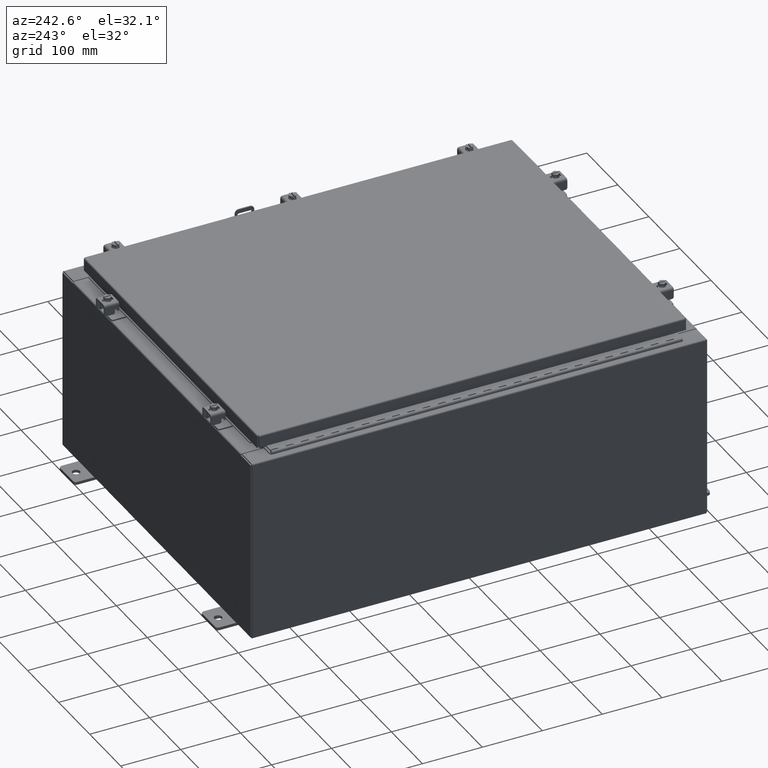
[diagram: clean part render]
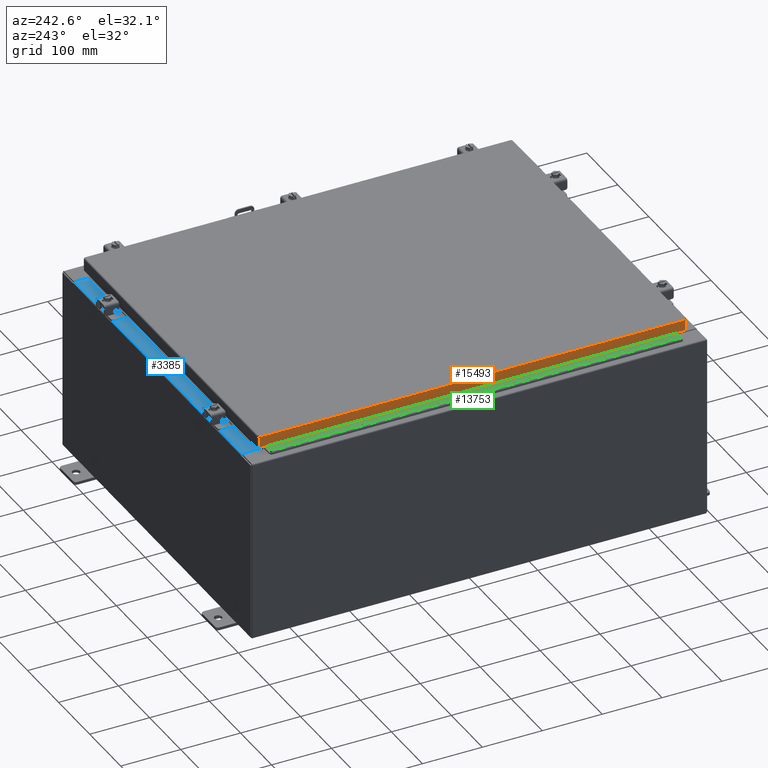
[diagram: same view with three faces highlighted in distinct colors, each labeled with its STEP entity id]
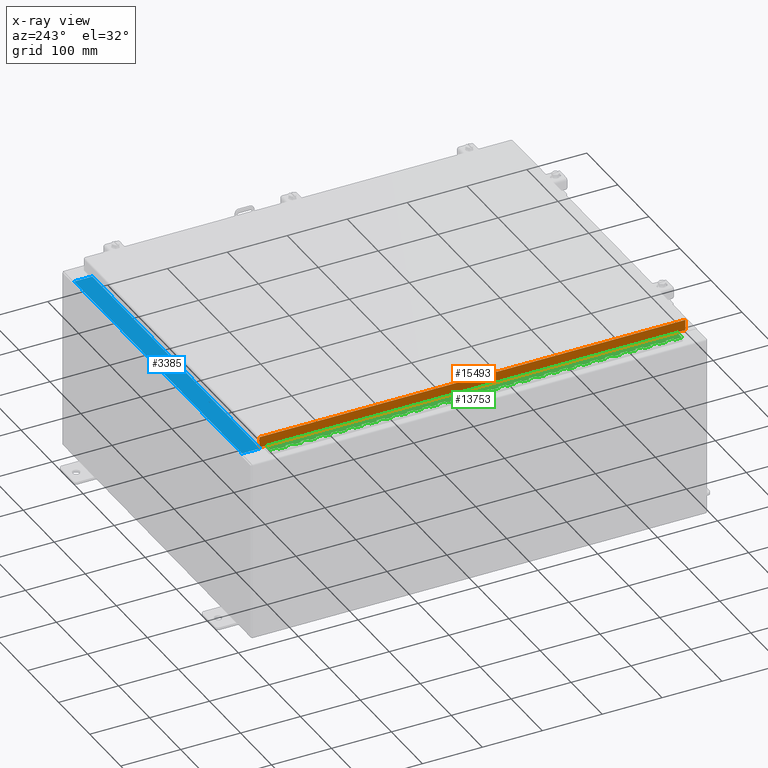
[diagram: x-ray of the same camera — body ghosted, the three highlighted faces saturated]
A machine part, auxiliary view with three faces highlighted in distinct colors.
The next image is the same camera in x-ray (body ghosted, the three faces saturated) — at least one of them is partly hidden behind the body in this view.
Their STEP definitions:

[orange] entity #15493 — the highlighted planar face has unit normal (1, 0, -0).
#313 = LINE ( 'NONE', #9236, #25178 ) ;
#3766 = LINE ( 'NONE', #9509, #18261 ) ;
#4412 = ORIENTED_EDGE ( 'NONE', *, *, #5083, .F. ) ;
#5083 = EDGE_CURVE ( 'NONE', #35605, #8408, #7806, .T. ) ;
#6195 = VERTEX_POINT ( 'NONE', #8653 ) ;
#7806 = LINE ( 'NONE', #22860, #22263 ) ;
#8408 = VERTEX_POINT ( 'NONE', #32806 ) ;
#8653 = CARTESIAN_POINT ( 'NONE',  ( -11.07799999999999900, 14.00515786437626900, -0.08770000000000004200 ) ) ;
#9236 = CARTESIAN_POINT ( 'NONE',  ( -11.07799999999999900, 14.00515786437626900, 1.316703167298978800E-013 ) ) ;
#9509 = CARTESIAN_POINT ( 'NONE',  ( -11.07800000000000300, -14.09399999999999600, -0.7949999999999997100 ) ) ;
#10860 = ORIENTED_EDGE ( 'NONE', *, *, #34751, .T. ) ;
#11060 = CARTESIAN_POINT ( 'NONE',  ( -11.07799999999999900, -14.09399999999999600, -0.08770000000000004200 ) ) ;
#11999 = AXIS2_PLACEMENT_3D ( 'NONE', #35287, #32503, #15148 ) ;
#12408 = DIRECTION ( 'NONE',  ( -4.379057701015054300E-047, 1.000000000000000000, 1.211441035930299800E-016 ) ) ;
#15148 = DIRECTION ( 'NONE',  ( -3.034122441942816500E-015, 0.0000000000000000000, -1.000000000000000000 ) ) ;
#15493 = ADVANCED_FACE ( 'NONE', ( #20858 ), #29574, .F. ) ;
#18172 = EDGE_CURVE ( 'NONE', #6195, #35605, #27875, .T. ) ;
#18261 = VECTOR ( 'NONE', #12408, 39.37007874015748100 ) ;
#19173 = CARTESIAN_POINT ( 'NONE',  ( -11.07800000000000300, 14.00515786437627400, -0.7949999999999962700 ) ) ;
#20858 = FACE_OUTER_BOUND ( 'NONE', #34600, .T. ) ;
#20948 = ORIENTED_EDGE ( 'NONE', *, *, #22774, .F. ) ;
#21466 = ORIENTED_EDGE ( 'NONE', *, *, #18172, .F. ) ;
#22263 = VECTOR ( 'NONE', #22989, 39.37007874015748100 ) ;
#22774 = EDGE_CURVE ( 'NONE', #8408, #24927, #3766, .T. ) ;
#22860 = CARTESIAN_POINT ( 'NONE',  ( -11.07799999999999900, -14.00515786437626500, -0.07469999999999976700 ) ) ;
#22989 = DIRECTION ( 'NONE',  ( -3.034122441942816500E-015, 6.982962677686265900E-015, -1.000000000000000000 ) ) ;
#24927 = VERTEX_POINT ( 'NONE', #19173 ) ;
#25178 = VECTOR ( 'NONE', #26540, 39.37007874015748100 ) ;
#26540 = DIRECTION ( 'NONE',  ( -3.034122441942816500E-015, 6.982962677686265900E-015, -1.000000000000000000 ) ) ;
#27875 = LINE ( 'NONE', #11060, #36487 ) ;
#29574 = PLANE ( 'NONE',  #11999 ) ;
#31336 = DIRECTION ( 'NONE',  ( 3.675660434206577100E-031, -1.000000000000000000, -1.083515668565077200E-045 ) ) ;
#32503 = DIRECTION ( 'NONE',  ( 1.000000000000000000, 3.675660434206576600E-031, -3.034122441942816500E-015 ) ) ;
#32806 = CARTESIAN_POINT ( 'NONE',  ( -11.07800000000000300, -14.00515786437626200, -0.7949999999999996000 ) ) ;
#34600 = EDGE_LOOP ( 'NONE', ( #21466, #10860, #20948, #4412 ) ) ;
#34751 = EDGE_CURVE ( 'NONE', #6195, #24927, #313, .T. ) ;
#35287 = CARTESIAN_POINT ( 'NONE',  ( -11.07799999999999900, -4.071896629014046000E-030, 3.387282206785410600E-014 ) ) ;
#35605 = VERTEX_POINT ( 'NONE', #36099 ) ;
#36099 = CARTESIAN_POINT ( 'NONE',  ( -11.07799999999999900, -14.00515786437626400, -0.08770000000000007000 ) ) ;
#36487 = VECTOR ( 'NONE', #31336, 39.37007874015748100 ) ;

[blue] entity #3385 — the highlighted planar face has unit normal (0, 0, 1).
#713 = PLANE ( 'NONE',  #34507 ) ;
#1290 = CARTESIAN_POINT ( 'NONE',  ( -10.63720000000000200, -1.287299999999998100, 6.000000000000004400 ) ) ;
#2976 = DIRECTION ( 'NONE',  ( 0.0000000000000000000, -1.000000000000000000, 2.674785894579892700E-015 ) ) ;
#3385 = ADVANCED_FACE ( 'NONE', ( #33130 ), #713, .T. ) ;
#4045 = CARTESIAN_POINT ( 'NONE',  ( -10.63720000000000200, -0.08770000000000026400, 6.000000000000001800 ) ) ;
#5869 = DIRECTION ( 'NONE',  ( 0.0000000000000000000, 2.674785894579892700E-015, 1.000000000000000000 ) ) ;
#6476 = CARTESIAN_POINT ( 'NONE',  ( -3.422455537835030400E-018, -0.08770000000000026400, 6.000000000000001800 ) ) ;
#8168 = ORIENTED_EDGE ( 'NONE', *, *, #31538, .F. ) ;
#8795 = VECTOR ( 'NONE', #32586, 39.37007874015748100 ) ;
#9713 = LINE ( 'NONE', #26722, #8795 ) ;
#10251 = ORIENTED_EDGE ( 'NONE', *, *, #30689, .F. ) ;
#12371 = VECTOR ( 'NONE', #33634, 39.37007874015748100 ) ;
#13249 = LINE ( 'NONE', #19074, #12371 ) ;
#13907 = EDGE_LOOP ( 'NONE', ( #15640, #8168, #10251, #23909 ) ) ;
#14109 = VECTOR ( 'NONE', #33468, 39.37007874015748100 ) ;
#14123 = VERTEX_POINT ( 'NONE', #20045 ) ;
#15640 = ORIENTED_EDGE ( 'NONE', *, *, #23709, .F. ) ;
#16222 = CARTESIAN_POINT ( 'NONE',  ( 10.63720000000000400, -0.08770000000000002800, 6.000000000000001800 ) ) ;
#17008 = CARTESIAN_POINT ( 'NONE',  ( -3.422455537835030400E-018, 1.610972251716582100E-014, 6.000000000000001800 ) ) ;
#18311 = VECTOR ( 'NONE', #20899, 39.37007874015748100 ) ;
#19074 = CARTESIAN_POINT ( 'NONE',  ( 10.63720000000000400, -1.287299999999998800, 6.000000000000003600 ) ) ;
#20045 = CARTESIAN_POINT ( 'NONE',  ( 10.63720000000000200, -1.287299999999998800, 6.000000000000006200 ) ) ;
#20890 = LINE ( 'NONE', #30668, #14109 ) ;
#20899 = DIRECTION ( 'NONE',  ( -1.000000000000000000, 0.0000000000000000000, 0.0000000000000000000 ) ) ;
#23709 = EDGE_CURVE ( 'NONE', #32648, #26119, #20890, .T. ) ;
#23909 = ORIENTED_EDGE ( 'NONE', *, *, #30659, .T. ) ;
#24177 = LINE ( 'NONE', #6476, #18311 ) ;
#26119 = VERTEX_POINT ( 'NONE', #4045 ) ;
#26722 = CARTESIAN_POINT ( 'NONE',  ( 10.63720000000000200, -1.300299999999999800, 6.000000000000006200 ) ) ;
#30659 = EDGE_CURVE ( 'NONE', #32098, #26119, #24177, .T. ) ;
#30668 = CARTESIAN_POINT ( 'NONE',  ( -10.63720000000000200, -0.07469999999999973900, 6.000000000000001800 ) ) ;
#30689 = EDGE_CURVE ( 'NONE', #32098, #14123, #9713, .T. ) ;
#31538 = EDGE_CURVE ( 'NONE', #14123, #32648, #13249, .T. ) ;
#32098 = VERTEX_POINT ( 'NONE', #16222 ) ;
#32586 = DIRECTION ( 'NONE',  ( -0.0000000000000000000, -1.000000000000000000, 3.566381192773190000E-015 ) ) ;
#32648 = VERTEX_POINT ( 'NONE', #1290 ) ;
#33130 = FACE_OUTER_BOUND ( 'NONE', #13907, .T. ) ;
#33468 = DIRECTION ( 'NONE',  ( -0.0000000000000000000, 1.000000000000000000, -2.674785894579892700E-015 ) ) ;
#33634 = DIRECTION ( 'NONE',  ( -1.000000000000000000, 0.0000000000000000000, 0.0000000000000000000 ) ) ;
#34507 = AXIS2_PLACEMENT_3D ( 'NONE', #17008, #5869, #2976 ) ;

[green] entity #13753 — the highlighted planar face has unit normal (-0, -0, 1).
#34 = CARTESIAN_POINT ( 'NONE',  ( -0.6869999999999982800, 0.5504999999999997700, -14.99999999999999800 ) ) ;
#38 = EDGE_CURVE ( 'NONE', #2871, #35793, #17425, .T. ) ;
#68 = VERTEX_POINT ( 'NONE', #34876 ) ;
#81 = LINE ( 'NONE', #2810, #29022 ) ;
#181 = LINE ( 'NONE', #2128, #30053 ) ;
#191 = VECTOR ( 'NONE', #36185, 39.37007874015748100 ) ;
#294 = VERTEX_POINT ( 'NONE', #2362 ) ;
#356 = ORIENTED_EDGE ( 'NONE', *, *, #32649, .F. ) ;
#387 = ORIENTED_EDGE ( 'NONE', *, *, #35982, .T. ) ;
#399 = LINE ( 'NONE', #3281, #14871 ) ;
#405 = LINE ( 'NONE', #32171, #32115 ) ;
#427 = VERTEX_POINT ( 'NONE', #36012 ) ;
#455 = VECTOR ( 'NONE', #10403, 39.37007874015748100 ) ;
#536 = CARTESIAN_POINT ( 'NONE',  ( -0.6869999999999998300, 0.07549999999999991400, 0.0000000000000000000 ) ) ;
#541 = LINE ( 'NONE', #32881, #29510 ) ;
#579 = EDGE_CURVE ( 'NONE', #30919, #3122, #2900, .T. ) ;
#594 = VERTEX_POINT ( 'NONE', #17690 ) ;
#601 = DIRECTION ( 'NONE',  ( 0.0000000000000000000, 0.0000000000000000000, 1.000000000000000000 ) ) ;
#629 = EDGE_CURVE ( 'NONE', #23982, #26302, #24190, .T. ) ;
#692 = CARTESIAN_POINT ( 'NONE',  ( -0.6869999999999978300, 0.6754999999999996600, -27.00000000000000000 ) ) ;
#696 = LINE ( 'NONE', #18017, #22840 ) ;
#800 = CARTESIAN_POINT ( 'NONE',  ( -0.6869999999999982800, 0.5504999999999997700, -17.00000000000000000 ) ) ;
#802 = CARTESIAN_POINT ( 'NONE',  ( -0.6869999999999978300, 0.6754999999999996600, -26.00000000000000000 ) ) ;
#818 = LINE ( 'NONE', #34606, #5731 ) ;
#907 = EDGE_CURVE ( 'NONE', #18146, #37498, #13293, .T. ) ;
#935 = EDGE_CURVE ( 'NONE', #10343, #22349, #12414, .T. ) ;
#955 = VECTOR ( 'NONE', #27880, 39.37007874015748100 ) ;
#1030 = CARTESIAN_POINT ( 'NONE',  ( -0.6869999999999973900, 0.8004999999999995500, -10.50000000000000000 ) ) ;
#1067 = CARTESIAN_POINT ( 'NONE',  ( -0.6869999999999978300, 0.6754999999999996600, -13.50000000000000000 ) ) ;
#1180 = CARTESIAN_POINT ( 'NONE',  ( -0.6869999999999973900, 0.8004999999999995500, -6.000000000000000900 ) ) ;
#1259 = LINE ( 'NONE', #37143, #23427 ) ;
#1264 = VECTOR ( 'NONE', #24419, 39.37007874015748100 ) ;
#1314 = VERTEX_POINT ( 'NONE', #22018 ) ;
#1336 = LINE ( 'NONE', #30653, #455 ) ;
#1406 = EDGE_CURVE ( 'NONE', #7191, #7165, #11453, .T. ) ;
#1420 = DIRECTION ( 'NONE',  ( -3.389037039080723100E-015, -1.000000000000000000, 0.0000000000000000000 ) ) ;
#1458 = VECTOR ( 'NONE', #17422, 39.37007874015748100 ) ;
#1466 = VECTOR ( 'NONE', #33208, 39.37007874015748100 ) ;
#1536 = LINE ( 'NONE', #1787, #16012 ) ;
#1631 = CARTESIAN_POINT ( 'NONE',  ( -0.6869999999999978300, 0.6754999999999996600, -6.499999999999999100 ) ) ;
#1787 = CARTESIAN_POINT ( 'NONE',  ( -0.6869999999999973900, 0.8004999999999995500, -24.50000000000000000 ) ) ;
#1799 = VERTEX_POINT ( 'NONE', #34 ) ;
#1852 = LINE ( 'NONE', #1180, #29960 ) ;
#1896 = VECTOR ( 'NONE', #2332, 39.37007874015748100 ) ;
#1904 = ORIENTED_EDGE ( 'NONE', *, *, #12352, .F. ) ;
#1956 = CARTESIAN_POINT ( 'NONE',  ( -0.6869999999999978300, 0.6754999999999996600, -27.00000000000000000 ) ) ;
#2040 = ORIENTED_EDGE ( 'NONE', *, *, #907, .F. ) ;
#2074 = VECTOR ( 'NONE', #35053, 39.37007874015748100 ) ;
#2095 = EDGE_CURVE ( 'NONE', #12803, #29306, #20451, .T. ) ;
#2098 = EDGE_CURVE ( 'NONE', #15997, #5421, #5021, .T. ) ;
#2128 = CARTESIAN_POINT ( 'NONE',  ( -0.6869999999999973900, 0.8004999999999995500, -23.50000000000000000 ) ) ;
#2172 = VECTOR ( 'NONE', #15049, 39.37007874015748100 ) ;
#2175 = VERTEX_POINT ( 'NONE', #28166 ) ;
#2207 = LINE ( 'NONE', #18855, #33066 ) ;
#2305 = VERTEX_POINT ( 'NONE', #12515 ) ;
#2332 = DIRECTION ( 'NONE',  ( 3.389037039080723100E-015, 1.000000000000000000, -0.0000000000000000000 ) ) ;
#2342 = CARTESIAN_POINT ( 'NONE',  ( -0.6869999999999973900, 0.8004999999999995500, -16.00000000000000000 ) ) ;
#2362 = CARTESIAN_POINT ( 'NONE',  ( -0.6869999999999978300, 0.6754999999999996600, -17.99999999999999600 ) ) ;
#2369 = CARTESIAN_POINT ( 'NONE',  ( -0.6869999999999978300, 0.6754999999999996600, -12.99999999999999800 ) ) ;
#2408 = CARTESIAN_POINT ( 'NONE',  ( -0.6869999999999978300, 0.6754999999999996600, -2.999999999999999600 ) ) ;
#2473 = VECTOR ( 'NONE', #20751, 39.37007874015748100 ) ;
#2482 = EDGE_CURVE ( 'NONE', #2175, #7165, #8239, .T. ) ;
#2524 = LINE ( 'NONE', #18973, #24702 ) ;
#2634 = VECTOR ( 'NONE', #34248, 39.37007874015748100 ) ;
#2715 = EDGE_CURVE ( 'NONE', #21194, #294, #15496, .T. ) ;
#2750 = CARTESIAN_POINT ( 'NONE',  ( -0.6869999999999978300, 0.6754999999999996600, -4.500000000000000000 ) ) ;
#2810 = CARTESIAN_POINT ( 'NONE',  ( -0.6869999999999982800, 0.5504999999999997700, -3.500000000000000000 ) ) ;
#2871 = VERTEX_POINT ( 'NONE', #7509 ) ;
#2880 = VECTOR ( 'NONE', #26481, 39.37007874015748100 ) ;
#2900 = LINE ( 'NONE', #29102, #31906 ) ;
#2937 = EDGE_CURVE ( 'NONE', #30691, #10162, #541, .T. ) ;
#2958 = EDGE_CURVE ( 'NONE', #31257, #2305, #36283, .T. ) ;
#3008 = VERTEX_POINT ( 'NONE', #24221 ) ;
#3017 = CARTESIAN_POINT ( 'NONE',  ( -0.6869999999999978300, 0.6754999999999996600, -10.00000000000000000 ) ) ;
#3122 = VERTEX_POINT ( 'NONE', #21414 ) ;
#3156 = ORIENTED_EDGE ( 'NONE', *, *, #8874, .F. ) ;
#3211 = CARTESIAN_POINT ( 'NONE',  ( -0.6869999999999978300, 0.6754999999999996600, -14.49999999999999800 ) ) ;
#3281 = CARTESIAN_POINT ( 'NONE',  ( -0.6869999999999982800, 0.5504999999999997700, -20.50000000000000400 ) ) ;
#3350 = DIRECTION ( 'NONE',  ( 3.389037039080723100E-015, 1.000000000000000000, -0.0000000000000000000 ) ) ;
#3368 = VERTEX_POINT ( 'NONE', #16206 ) ;
#3367 = CARTESIAN_POINT ( 'NONE',  ( -0.6869999999999978300, 0.6754999999999996600, -15.50000000000000000 ) ) ;
#3425 = DIRECTION ( 'NONE',  ( -3.389037039080723100E-015, -1.000000000000000000, 0.0000000000000000000 ) ) ;
#3451 = ORIENTED_EDGE ( 'NONE', *, *, #29472, .F. ) ;
#3493 = ORIENTED_EDGE ( 'NONE', *, *, #34930, .F. ) ;
#3554 = VECTOR ( 'NONE', #35424, 39.37007874015748100 ) ;
#3560 = LINE ( 'NONE', #19801, #2634 ) ;
#3563 = CARTESIAN_POINT ( 'NONE',  ( -0.6869999999999982800, 0.5504999999999997700, -14.49999999999999800 ) ) ;
#3625 = EDGE_CURVE ( 'NONE', #2305, #23821, #31742, .T. ) ;
#3677 = ORIENTED_EDGE ( 'NONE', *, *, #4851, .F. ) ;
#3758 = CARTESIAN_POINT ( 'NONE',  ( -0.6869999999999978300, 0.6754999999999996600, -27.00000000000000000 ) ) ;
#3767 = CARTESIAN_POINT ( 'NONE',  ( -0.6869999999999978300, 0.6754999999999996600, -11.99999999999999800 ) ) ;
#3829 = ORIENTED_EDGE ( 'NONE', *, *, #34692, .F. ) ;
#3844 = CARTESIAN_POINT ( 'NONE',  ( -0.6869999999999978300, 0.6754999999999996600, -27.00000000000000000 ) ) ;
#3847 = LINE ( 'NONE', #14500, #9750 ) ;
#3929 = VERTEX_POINT ( 'NONE', #9054 ) ;
#3988 = DIRECTION ( 'NONE',  ( 3.369016658928398200E-015, 1.000000000000000000, 0.0000000000000000000 ) ) ;
#4069 = CARTESIAN_POINT ( 'NONE',  ( -0.6869999999999982800, 0.5504999999999997700, -18.50000000000000000 ) ) ;
#4088 = VECTOR ( 'NONE', #27258, 39.37007874015748100 ) ;
#4117 = DIRECTION ( 'NONE',  ( 3.389037039080723100E-015, 1.000000000000000000, -0.0000000000000000000 ) ) ;
#4161 = VERTEX_POINT ( 'NONE', #13752 ) ;
#4195 = CARTESIAN_POINT ( 'NONE',  ( -0.6869999999999973900, 0.8004999999999995500, -4.500000000000000000 ) ) ;
#4197 = CARTESIAN_POINT ( 'NONE',  ( -0.6869999999999978300, 0.6754999999999996600, -27.00000000000000000 ) ) ;
#4266 = CARTESIAN_POINT ( 'NONE',  ( -0.6869999999999982800, 0.5504999999999997700, -11.99999999999999800 ) ) ;
#4321 = EDGE_CURVE ( 'NONE', #29306, #27408, #2207, .T. ) ;
#4326 = VECTOR ( 'NONE', #21586, 39.37007874015748100 ) ;
#4400 = CARTESIAN_POINT ( 'NONE',  ( -0.6869999999999982800, 0.5504999999999997700, -16.50000000000000000 ) ) ;
#4433 = VERTEX_POINT ( 'NONE', #27085 ) ;
#4466 = VECTOR ( 'NONE', #4117, 39.37007874015748100 ) ;
#4514 = LINE ( 'NONE', #12206, #19035 ) ;
#4595 = ORIENTED_EDGE ( 'NONE', *, *, #629, .F. ) ;
#4634 = EDGE_CURVE ( 'NONE', #23112, #10505, #30967, .T. ) ;
#4748 = DIRECTION ( 'NONE',  ( 3.389037039080723100E-015, 1.000000000000000000, -0.0000000000000000000 ) ) ;
#4775 = CARTESIAN_POINT ( 'NONE',  ( -0.6869999999999982800, 0.5504999999999997700, -1.000000000000000000 ) ) ;
#4851 = EDGE_CURVE ( 'NONE', #2871, #5323, #31405, .T. ) ;
#4894 = VERTEX_POINT ( 'NONE', #35400 ) ;
#4927 = CARTESIAN_POINT ( 'NONE',  ( -0.6869999999999973900, 0.8004999999999995500, -26.50000000000000400 ) ) ;
#5003 = LINE ( 'NONE', #28993, #34940 ) ;
#5021 = LINE ( 'NONE', #27301, #34045 ) ;
#5024 = CARTESIAN_POINT ( 'NONE',  ( -0.6869999999999982800, 0.5504999999999997700, -11.50000000000000000 ) ) ;
#5071 = ORIENTED_EDGE ( 'NONE', *, *, #11089, .F. ) ;
#5323 = VERTEX_POINT ( 'NONE', #31520 ) ;
#5336 = VERTEX_POINT ( 'NONE', #22795 ) ;
#5399 = CARTESIAN_POINT ( 'NONE',  ( -0.6869999999999982800, 0.5504999999999997700, -13.50000000000000000 ) ) ;
#5415 = VECTOR ( 'NONE', #20774, 39.37007874015748100 ) ;
#5421 = VERTEX_POINT ( 'NONE', #4069 ) ;
#5537 = LINE ( 'NONE', #15332, #35475 ) ;
#5643 = ORIENTED_EDGE ( 'NONE', *, *, #9913, .T. ) ;
#5685 = DIRECTION ( 'NONE',  ( 0.0000000000000000000, -0.0000000000000000000, -1.000000000000000000 ) ) ;
#5731 = VECTOR ( 'NONE', #23052, 39.37007874015748100 ) ;
#5753 = DIRECTION ( 'NONE',  ( 0.0000000000000000000, 0.0000000000000000000, 1.000000000000000000 ) ) ;
#5836 = CARTESIAN_POINT ( 'NONE',  ( -0.6869999999999978300, 0.6754999999999996600, 0.0000000000000000000 ) ) ;
#5862 = ORIENTED_EDGE ( 'NONE', *, *, #25621, .F. ) ;
#5905 = CARTESIAN_POINT ( 'NONE',  ( -0.6869999999999973900, 0.8004999999999995500, -15.50000000000000000 ) ) ;
#6053 = LINE ( 'NONE', #17400, #35964 ) ;
#6107 = CARTESIAN_POINT ( 'NONE',  ( -0.6869999999999982800, 0.5504999999999997700, -16.00000000000000000 ) ) ;
#6151 = VERTEX_POINT ( 'NONE', #31993 ) ;
#6153 = CARTESIAN_POINT ( 'NONE',  ( -0.6869999999999978300, 0.6754999999999996600, -27.00000000000000000 ) ) ;
#6167 = CARTESIAN_POINT ( 'NONE',  ( -0.6869999999999973900, 0.8004999999999995500, -5.500000000000000000 ) ) ;
#6170 = ORIENTED_EDGE ( 'NONE', *, *, #20306, .F. ) ;
#6292 = CARTESIAN_POINT ( 'NONE',  ( -0.6869999999999973900, 0.8004999999999995500, -20.00000000000000000 ) ) ;
#6319 = ORIENTED_EDGE ( 'NONE', *, *, #6651, .F. ) ;
#6332 = VECTOR ( 'NONE', #19093, 39.37007874015748100 ) ;
#6407 = DIRECTION ( 'NONE',  ( -3.389037039080723100E-015, -1.000000000000000000, 0.0000000000000000000 ) ) ;
#6438 = DIRECTION ( 'NONE',  ( 3.389037039080723100E-015, 1.000000000000000000, -0.0000000000000000000 ) ) ;
#6480 = CARTESIAN_POINT ( 'NONE',  ( -0.6869999999999978300, 0.6754999999999996600, -4.000000000000000000 ) ) ;
#6481 = VECTOR ( 'NONE', #36469, 39.37007874015748100 ) ;
#6504 = CARTESIAN_POINT ( 'NONE',  ( -0.6869999999999978300, 0.6754999999999996600, -19.00000000000000000 ) ) ;
#6528 = CARTESIAN_POINT ( 'NONE',  ( -0.6869999999999978300, 0.6754999999999996600, -27.00000000000000000 ) ) ;
#6551 = EDGE_CURVE ( 'NONE', #22313, #35698, #24917, .T. ) ;
#6552 = CARTESIAN_POINT ( 'NONE',  ( -0.6869999999999978300, 0.6754999999999996600, -10.50000000000000000 ) ) ;
#6603 = EDGE_CURVE ( 'NONE', #26575, #10343, #21287, .T. ) ;
#6651 = EDGE_CURVE ( 'NONE', #33785, #33398, #26274, .T. ) ;
#6656 = ORIENTED_EDGE ( 'NONE', *, *, #12416, .T. ) ;
#6729 = VERTEX_POINT ( 'NONE', #3367 ) ;
#6754 = DIRECTION ( 'NONE',  ( 0.0000000000000000000, 0.0000000000000000000, 1.000000000000000000 ) ) ;
#6812 = VERTEX_POINT ( 'NONE', #9837 ) ;
#6831 = VERTEX_POINT ( 'NONE', #28674 ) ;
#6875 = VERTEX_POINT ( 'NONE', #32257 ) ;
#7085 = CARTESIAN_POINT ( 'NONE',  ( -0.6869999999999978300, 0.6754999999999996600, -23.99999999999999600 ) ) ;
#7094 = DIRECTION ( 'NONE',  ( -3.389037039080723100E-015, -1.000000000000000000, 0.0000000000000000000 ) ) ;
#7154 = DIRECTION ( 'NONE',  ( 0.0000000000000000000, 0.0000000000000000000, 1.000000000000000000 ) ) ;
#7165 = VERTEX_POINT ( 'NONE', #802 ) ;
#7191 = VERTEX_POINT ( 'NONE', #35316 ) ;
#7269 = VERTEX_POINT ( 'NONE', #24359 ) ;
#7401 = EDGE_CURVE ( 'NONE', #15997, #294, #30749, .T. ) ;
#7406 = DIRECTION ( 'NONE',  ( 3.389037039080723100E-015, 1.000000000000000000, -0.0000000000000000000 ) ) ;
#7509 = CARTESIAN_POINT ( 'NONE',  ( -0.6869999999999978300, 0.6754999999999996600, -3.500000000000000000 ) ) ;
#7520 = CARTESIAN_POINT ( 'NONE',  ( -0.6869999999999973900, 0.8004999999999995500, -11.99999999999999800 ) ) ;
#7562 = EDGE_CURVE ( 'NONE', #6151, #18146, #25267, .T. ) ;
#7580 = CARTESIAN_POINT ( 'NONE',  ( -0.6869999999999982800, 0.5504999999999997700, -15.50000000000000000 ) ) ;
#7597 = CARTESIAN_POINT ( 'NONE',  ( -0.6869999999999973900, 0.8004999999999995500, -8.500000000000000000 ) ) ;
#7598 = CARTESIAN_POINT ( 'NONE',  ( -0.6869999999999973900, 0.8004999999999995500, -5.000000000000000000 ) ) ;
#7648 = EDGE_CURVE ( 'NONE', #15781, #34195, #405, .T. ) ;
#7699 = ORIENTED_EDGE ( 'NONE', *, *, #4634, .T. ) ;
#7715 = CARTESIAN_POINT ( 'NONE',  ( -0.6869999999999978300, 0.6754999999999996600, -5.500000000000000000 ) ) ;
#7717 = VECTOR ( 'NONE', #7154, 39.37007874015748100 ) ;
#7730 = EDGE_CURVE ( 'NONE', #8538, #27433, #22519, .T. ) ;
#7773 = VECTOR ( 'NONE', #7406, 39.37007874015748100 ) ;
#7948 = DIRECTION ( 'NONE',  ( 0.0000000000000000000, -0.0000000000000000000, -1.000000000000000000 ) ) ;
#8072 = LINE ( 'NONE', #8717, #22534 ) ;
#8162 = CARTESIAN_POINT ( 'NONE',  ( -0.6869999999999973900, 0.8004999999999995500, -1.000000000000000000 ) ) ;
#8165 = EDGE_CURVE ( 'NONE', #16160, #24158, #1259, .T. ) ;
#8239 = LINE ( 'NONE', #29059, #1458 ) ;
#8263 = DIRECTION ( 'NONE',  ( 0.0000000000000000000, -0.0000000000000000000, -1.000000000000000000 ) ) ;
#8277 = VECTOR ( 'NONE', #3425, 39.37007874015748100 ) ;
#8445 = CARTESIAN_POINT ( 'NONE',  ( -0.6869999999999973900, 0.8004999999999995500, -7.499999999999999100 ) ) ;
#8449 = ORIENTED_EDGE ( 'NONE', *, *, #21935, .F. ) ;
#8538 = VERTEX_POINT ( 'NONE', #26147 ) ;
#8591 = VERTEX_POINT ( 'NONE', #23605 ) ;
#8622 = CARTESIAN_POINT ( 'NONE',  ( -0.6869999999999973900, 0.8004999999999995500, -21.50000000000000400 ) ) ;
#8625 = ORIENTED_EDGE ( 'NONE', *, *, #13953, .F. ) ;
#8638 = LINE ( 'NONE', #27371, #7717 ) ;
#8652 = DIRECTION ( 'NONE',  ( 3.389037039080723100E-015, 1.000000000000000000, -0.0000000000000000000 ) ) ;
#8717 = CARTESIAN_POINT ( 'NONE',  ( -0.6869999999999978300, 0.6754999999999996600, -27.00000000000000000 ) ) ;
#8816 = DIRECTION ( 'NONE',  ( 0.0000000000000000000, 0.0000000000000000000, 1.000000000000000000 ) ) ;
#8817 = VECTOR ( 'NONE', #8652, 39.37007874015748100 ) ;
#8819 = CARTESIAN_POINT ( 'NONE',  ( -0.6869999999999973900, 0.8004999999999995500, -3.500000000000000000 ) ) ;
#8874 = EDGE_CURVE ( 'NONE', #19894, #34922, #35182, .T. ) ;
#8929 = VECTOR ( 'NONE', #1420, 39.37007874015748100 ) ;
#8941 = VERTEX_POINT ( 'NONE', #22354 ) ;
#8969 = LINE ( 'NONE', #36741, #23440 ) ;
#9054 = CARTESIAN_POINT ( 'NONE',  ( -0.6869999999999982800, 0.5504999999999997700, -14.49999999999999800 ) ) ;
#9073 = VERTEX_POINT ( 'NONE', #19101 ) ;
#9092 = CARTESIAN_POINT ( 'NONE',  ( -0.6869999999999982800, 0.5504999999999997700, -15.50000000000000000 ) ) ;
#9192 = LINE ( 'NONE', #15830, #1466 ) ;
#9304 = LINE ( 'NONE', #34042, #2473 ) ;
#9347 = DIRECTION ( 'NONE',  ( 0.0000000000000000000, 0.0000000000000000000, 1.000000000000000000 ) ) ;
#9353 = ORIENTED_EDGE ( 'NONE', *, *, #579, .F. ) ;
#9359 = CARTESIAN_POINT ( 'NONE',  ( -0.6869999999999982800, 0.5504999999999997700, -19.50000000000000000 ) ) ;
#9486 = CARTESIAN_POINT ( 'NONE',  ( -0.6869999999999978300, 0.6754999999999996600, -27.00000000000000000 ) ) ;
#9506 = VECTOR ( 'NONE', #31545, 39.37007874015748100 ) ;
#9548 = VERTEX_POINT ( 'NONE', #32006 ) ;
#9657 = CARTESIAN_POINT ( 'NONE',  ( -0.6869999999999982800, 0.5504999999999997700, -2.999999999999999600 ) ) ;
#9677 = ORIENTED_EDGE ( 'NONE', *, *, #26745, .F. ) ;
#9723 = VERTEX_POINT ( 'NONE', #3767 ) ;
#9727 = LINE ( 'NONE', #34390, #16462 ) ;
#9750 = VECTOR ( 'NONE', #34760, 39.37007874015748100 ) ;
#9756 = DIRECTION ( 'NONE',  ( 0.0000000000000000000, 0.0000000000000000000, 1.000000000000000000 ) ) ;
#9819 = VECTOR ( 'NONE', #23135, 39.37007874015748100 ) ;
#9837 = CARTESIAN_POINT ( 'NONE',  ( -0.6869999999999978300, 0.6754999999999996600, -21.00000000000000000 ) ) ;
#9902 = EDGE_CURVE ( 'NONE', #15823, #18224, #9304, .T. ) ;
#9913 = EDGE_CURVE ( 'NONE', #15781, #23821, #696, .T. ) ;
#9920 = DIRECTION ( 'NONE',  ( 3.389037039080723100E-015, 1.000000000000000000, -0.0000000000000000000 ) ) ;
#9999 = VECTOR ( 'NONE', #17250, 39.37007874015748100 ) ;
#10041 = VERTEX_POINT ( 'NONE', #536 ) ;
#10042 = CARTESIAN_POINT ( 'NONE',  ( -0.6869999999999973900, 0.8004999999999995500, -22.00000000000000000 ) ) ;
#10106 = EDGE_CURVE ( 'NONE', #23010, #5336, #26028, .T. ) ;
#10145 = EDGE_CURVE ( 'NONE', #427, #68, #17409, .T. ) ;
#10162 = VERTEX_POINT ( 'NONE', #24380 ) ;
#10200 = ORIENTED_EDGE ( 'NONE', *, *, #27331, .F. ) ;
#10249 = VECTOR ( 'NONE', #14527, 39.37007874015748100 ) ;
#10303 = CARTESIAN_POINT ( 'NONE',  ( -0.6869999999999978300, 0.6754999999999996600, -14.00000000000000000 ) ) ;
#10343 = VERTEX_POINT ( 'NONE', #6107 ) ;
#10403 = DIRECTION ( 'NONE',  ( 3.389037039080723100E-015, 1.000000000000000000, -0.0000000000000000000 ) ) ;
#10505 = VERTEX_POINT ( 'NONE', #19793 ) ;
#10509 = FACE_OUTER_BOUND ( 'NONE', #34099, .T. ) ;
#10550 = LINE ( 'NONE', #34735, #23210 ) ;
#10555 = EDGE_CURVE ( 'NONE', #15273, #22105, #10585, .T. ) ;
#10556 = CARTESIAN_POINT ( 'NONE',  ( -0.6869999999999973900, 0.8004999999999995500, -12.99999999999999800 ) ) ;
#10585 = LINE ( 'NONE', #36744, #2880 ) ;
#10619 = VECTOR ( 'NONE', #18207, 39.37007874015748100 ) ;
#10649 = CARTESIAN_POINT ( 'NONE',  ( -0.6869999999999978300, 0.6754999999999996600, -11.00000000000000000 ) ) ;
#10652 = EDGE_CURVE ( 'NONE', #3368, #30691, #14671, .T. ) ;
#10681 = CARTESIAN_POINT ( 'NONE',  ( -0.6869999999999978300, 0.6754999999999996600, -20.50000000000000400 ) ) ;
#10683 = VECTOR ( 'NONE', #23958, 39.37007874015748100 ) ;
#10731 = DIRECTION ( 'NONE',  ( 0.0000000000000000000, 0.0000000000000000000, 1.000000000000000000 ) ) ;
#10795 = VECTOR ( 'NONE', #36570, 39.37007874015748100 ) ;
#10869 = EDGE_CURVE ( 'NONE', #19254, #5336, #18735, .T. ) ;
#10930 = EDGE_CURVE ( 'NONE', #15678, #594, #28647, .T. ) ;
#10942 = EDGE_CURVE ( 'NONE', #34340, #31257, #14179, .T. ) ;
#10950 = DIRECTION ( 'NONE',  ( 3.389037039080723100E-015, 1.000000000000000000, -0.0000000000000000000 ) ) ;
#10967 = ORIENTED_EDGE ( 'NONE', *, *, #38, .T. ) ;
#11028 = CARTESIAN_POINT ( 'NONE',  ( -0.6869999999999978300, 0.6754999999999996600, -27.00000000000000000 ) ) ;
#11034 = VERTEX_POINT ( 'NONE', #24822 ) ;
#11042 = LINE ( 'NONE', #3563, #16903 ) ;
#11089 = EDGE_CURVE ( 'NONE', #16756, #26032, #1536, .T. ) ;
#11115 = ORIENTED_EDGE ( 'NONE', *, *, #10869, .T. ) ;
#11140 = EDGE_CURVE ( 'NONE', #5421, #9073, #23737, .T. ) ;
#11166 = EDGE_CURVE ( 'NONE', #17420, #14382, #37291, .T. ) ;
#11350 = DIRECTION ( 'NONE',  ( 3.389037039080723100E-015, 1.000000000000000000, -0.0000000000000000000 ) ) ;
#11353 = CARTESIAN_POINT ( 'NONE',  ( -0.6869999999999982800, 0.5504999999999997700, -6.499999999999999100 ) ) ;
#11453 = LINE ( 'NONE', #21915, #25932 ) ;
#11491 = VECTOR ( 'NONE', #16021, 39.37007874015748100 ) ;
#11502 = DIRECTION ( 'NONE',  ( 3.389037039080723100E-015, 1.000000000000000000, -0.0000000000000000000 ) ) ;
#11539 = DIRECTION ( 'NONE',  ( -3.389037039080723100E-015, -1.000000000000000000, 0.0000000000000000000 ) ) ;
#11633 = VERTEX_POINT ( 'NONE', #4775 ) ;
#11656 = CARTESIAN_POINT ( 'NONE',  ( -0.6869999999999982800, 0.5504999999999997700, -5.500000000000000000 ) ) ;
#11677 = EDGE_CURVE ( 'NONE', #68, #26168, #36439, .T. ) ;
#11798 = VERTEX_POINT ( 'NONE', #17443 ) ;
#11804 = VECTOR ( 'NONE', #19720, 39.37007874015748100 ) ;
#11815 = LINE ( 'NONE', #37347, #9999 ) ;
#11880 = CARTESIAN_POINT ( 'NONE',  ( -0.6869999999999978300, 0.6754999999999996600, -12.49999999999999800 ) ) ;
#12094 = VECTOR ( 'NONE', #35773, 39.37007874015748100 ) ;
#12204 = ORIENTED_EDGE ( 'NONE', *, *, #13692, .T. ) ;
#12206 = CARTESIAN_POINT ( 'NONE',  ( -0.6870000000000022800, -0.6245000000000003900, -27.00000000000000000 ) ) ;
#12213 = LINE ( 'NONE', #21423, #4466 ) ;
#12299 = CARTESIAN_POINT ( 'NONE',  ( -0.6869999999999982800, 0.5504999999999997700, -11.00000000000000000 ) ) ;
#12352 = EDGE_CURVE ( 'NONE', #24667, #6151, #9727, .T. ) ;
#12355 = EDGE_CURVE ( 'NONE', #7269, #22105, #31913, .T. ) ;
#12414 = LINE ( 'NONE', #2342, #11491 ) ;
#12416 = EDGE_CURVE ( 'NONE', #37343, #34922, #6053, .T. ) ;
#12418 = ORIENTED_EDGE ( 'NONE', *, *, #33308, .T. ) ;
#12451 = LINE ( 'NONE', #15329, #35538 ) ;
#12468 = CARTESIAN_POINT ( 'NONE',  ( -0.6869999999999973900, 0.8004999999999995500, -16.50000000000000000 ) ) ;
#12515 = CARTESIAN_POINT ( 'NONE',  ( -0.6869999999999982800, 0.5504999999999997700, -20.00000000000000000 ) ) ;
#12554 = ORIENTED_EDGE ( 'NONE', *, *, #34020, .T. ) ;
#12665 = ORIENTED_EDGE ( 'NONE', *, *, #26239, .F. ) ;
#12803 = VERTEX_POINT ( 'NONE', #19384 ) ;
#12951 = ORIENTED_EDGE ( 'NONE', *, *, #33413, .F. ) ;
#13039 = CARTESIAN_POINT ( 'NONE',  ( -0.6869999999999978300, 0.6754999999999996600, -19.50000000000000000 ) ) ;
#13062 = CARTESIAN_POINT ( 'NONE',  ( -0.6869999999999978300, 0.6754999999999996600, -1.000000000000000000 ) ) ;
#13088 = EDGE_CURVE ( 'NONE', #19254, #23982, #15959, .T. ) ;
#13154 = EDGE_CURVE ( 'NONE', #4894, #2175, #5537, .T. ) ;
#13157 = CARTESIAN_POINT ( 'NONE',  ( -0.6869999999999973900, 0.8004999999999995500, -11.50000000000000000 ) ) ;
#13231 = VECTOR ( 'NONE', #26777, 39.37007874015748100 ) ;
#13263 = VERTEX_POINT ( 'NONE', #7085 ) ;
#13293 = LINE ( 'NONE', #10556, #27753 ) ;
#13329 = EDGE_CURVE ( 'NONE', #1314, #18224, #15518, .T. ) ;
#13365 = VECTOR ( 'NONE', #7948, 39.37007874015748100 ) ;
#13395 = CARTESIAN_POINT ( 'NONE',  ( -0.6869999999999978300, 0.6754999999999996600, -1.499999999999999800 ) ) ;
#13418 = LINE ( 'NONE', #8622, #14326 ) ;
#13547 = DIRECTION ( 'NONE',  ( 0.0000000000000000000, -0.0000000000000000000, -1.000000000000000000 ) ) ;
#13598 = VECTOR ( 'NONE', #25523, 39.37007874015748100 ) ;
#13614 = DIRECTION ( 'NONE',  ( -3.389037039080723100E-015, -1.000000000000000000, 0.0000000000000000000 ) ) ;
#13640 = EDGE_CURVE ( 'NONE', #6831, #9548, #29542, .T. ) ;
#13659 = ORIENTED_EDGE ( 'NONE', *, *, #10555, .T. ) ;
#13692 = EDGE_CURVE ( 'NONE', #34340, #33701, #20920, .T. ) ;
#13752 = CARTESIAN_POINT ( 'NONE',  ( -0.6869999999999978300, 0.6754999999999996600, -21.50000000000000400 ) ) ;
#13753 = ADVANCED_FACE ( 'NONE', ( #10509 ), #29952, .T. ) ;
#13770 = ORIENTED_EDGE ( 'NONE', *, *, #28305, .T. ) ;
#13805 = DIRECTION ( 'NONE',  ( -3.389037039080723100E-015, -1.000000000000000000, 0.0000000000000000000 ) ) ;
#13826 = CARTESIAN_POINT ( 'NONE',  ( -0.6869999999999982800, 0.5504999999999997700, -4.500000000000000000 ) ) ;
#13890 = ORIENTED_EDGE ( 'NONE', *, *, #7562, .F. ) ;
#13921 = DIRECTION ( 'NONE',  ( 0.0000000000000000000, 0.0000000000000000000, 1.000000000000000000 ) ) ;
#13953 = EDGE_CURVE ( 'NONE', #26168, #9723, #14176, .T. ) ;
#14176 = LINE ( 'NONE', #7520, #6481 ) ;
#14179 = LINE ( 'NONE', #30164, #35487 ) ;
#14185 = CARTESIAN_POINT ( 'NONE',  ( -0.6869999999999973900, 0.8004999999999995500, -23.00000000000000000 ) ) ;
#14187 = EDGE_CURVE ( 'NONE', #8591, #20273, #10550, .T. ) ;
#14265 = ORIENTED_EDGE ( 'NONE', *, *, #24531, .F. ) ;
#14285 = VECTOR ( 'NONE', #28686, 39.37007874015748100 ) ;
#14326 = VECTOR ( 'NONE', #11539, 39.37007874015748100 ) ;
#14330 = ORIENTED_EDGE ( 'NONE', *, *, #31679, .F. ) ;
#14356 = EDGE_CURVE ( 'NONE', #29177, #15759, #9192, .T. ) ;
#14382 = VERTEX_POINT ( 'NONE', #13062 ) ;
#14500 = CARTESIAN_POINT ( 'NONE',  ( -0.6869999999999982800, 0.5504999999999997700, -0.5000000000000000000 ) ) ;
#14527 = DIRECTION ( 'NONE',  ( 3.389037039080723100E-015, 1.000000000000000000, -0.0000000000000000000 ) ) ;
#14528 = LINE ( 'NONE', #28299, #28064 ) ;
#14671 = LINE ( 'NONE', #4400, #191 ) ;
#14755 = ORIENTED_EDGE ( 'NONE', *, *, #10652, .F. ) ;
#14794 = CARTESIAN_POINT ( 'NONE',  ( -0.6869999999999973900, 0.8004999999999995500, -10.00000000000000000 ) ) ;
#14871 = VECTOR ( 'NONE', #20615, 39.37007874015748100 ) ;
#14927 = CARTESIAN_POINT ( 'NONE',  ( -0.6869999999999998300, 0.07549999999999991400, -27.00000000000000000 ) ) ;
#14928 = EDGE_CURVE ( 'NONE', #34792, #12803, #23619, .T. ) ;
#14945 = CARTESIAN_POINT ( 'NONE',  ( -0.6869999999999978300, 0.6754999999999996600, -22.00000000000000000 ) ) ;
#14956 = DIRECTION ( 'NONE',  ( -3.389037039080723100E-015, -1.000000000000000000, 0.0000000000000000000 ) ) ;
#14957 = LINE ( 'NONE', #6153, #23549 ) ;
#15049 = DIRECTION ( 'NONE',  ( 0.0000000000000000000, -0.0000000000000000000, -1.000000000000000000 ) ) ;
#15086 = ORIENTED_EDGE ( 'NONE', *, *, #30037, .F. ) ;
#15177 = CARTESIAN_POINT ( 'NONE',  ( -0.6869999999999982800, 0.5504999999999997700, -21.50000000000000400 ) ) ;
#15204 = DIRECTION ( 'NONE',  ( 0.0000000000000000000, -0.0000000000000000000, -1.000000000000000000 ) ) ;
#15206 = DIRECTION ( 'NONE',  ( 0.0000000000000000000, -0.0000000000000000000, -1.000000000000000000 ) ) ;
#15273 = VERTEX_POINT ( 'NONE', #2750 ) ;
#15329 = CARTESIAN_POINT ( 'NONE',  ( -0.6869999999999978300, 0.6754999999999996600, -27.00000000000000000 ) ) ;
#15332 = CARTESIAN_POINT ( 'NONE',  ( -0.6869999999999982800, 0.5504999999999997700, -25.50000000000000400 ) ) ;
#15358 = CARTESIAN_POINT ( 'NONE',  ( -0.6869999999999982800, 0.5504999999999997700, -2.500000000000000000 ) ) ;
#15373 = CARTESIAN_POINT ( 'NONE',  ( -0.6869999999999973900, 0.8004999999999995500, -2.999999999999999600 ) ) ;
#15408 = DIRECTION ( 'NONE',  ( 0.0000000000000000000, 0.0000000000000000000, 1.000000000000000000 ) ) ;
#15496 = LINE ( 'NONE', #19175, #7773 ) ;
#15518 = LINE ( 'NONE', #21865, #16390 ) ;
#15538 = ORIENTED_EDGE ( 'NONE', *, *, #13329, .F. ) ;
#15605 = CARTESIAN_POINT ( 'NONE',  ( -0.6869999999999982800, 0.5504999999999997700, -22.50000000000000000 ) ) ;
#15644 = EDGE_CURVE ( 'NONE', #31664, #16749, #8638, .T. ) ;
#15678 = VERTEX_POINT ( 'NONE', #27494 ) ;
#15692 = VERTEX_POINT ( 'NONE', #10303 ) ;
#15759 = VERTEX_POINT ( 'NONE', #36607 ) ;
#15770 = DIRECTION ( 'NONE',  ( 3.389037039080723100E-015, 1.000000000000000000, -0.0000000000000000000 ) ) ;
#15771 = LINE ( 'NONE', #34673, #23482 ) ;
#15781 = VERTEX_POINT ( 'NONE', #10681 ) ;
#15788 = CARTESIAN_POINT ( 'NONE',  ( -0.6869999999999973900, 0.8004999999999995500, -0.5000000000000000000 ) ) ;
#15823 = VERTEX_POINT ( 'NONE', #19542 ) ;
#15830 = CARTESIAN_POINT ( 'NONE',  ( -0.6869999999999982800, 0.5504999999999997700, -5.500000000000000000 ) ) ;
#15901 = VECTOR ( 'NONE', #32933, 39.37007874015748100 ) ;
#15946 = EDGE_CURVE ( 'NONE', #23112, #16160, #36221, .T. ) ;
#15959 = LINE ( 'NONE', #32322, #8277 ) ;
#15961 = VECTOR ( 'NONE', #33871, 39.37007874015748100 ) ;
#15993 = ORIENTED_EDGE ( 'NONE', *, *, #6603, .F. ) ;
#15994 = VERTEX_POINT ( 'NONE', #5836 ) ;
#15997 = VERTEX_POINT ( 'NONE', #26113 ) ;
#16012 = VECTOR ( 'NONE', #24949, 39.37007874015748100 ) ;
#16021 = DIRECTION ( 'NONE',  ( 3.389037039080723100E-015, 1.000000000000000000, -0.0000000000000000000 ) ) ;
#16121 = ORIENTED_EDGE ( 'NONE', *, *, #37065, .F. ) ;
#16160 = VERTEX_POINT ( 'NONE', #15358 ) ;
#16206 = CARTESIAN_POINT ( 'NONE',  ( -0.6869999999999982800, 0.5504999999999997700, -16.50000000000000000 ) ) ;
#16247 = ORIENTED_EDGE ( 'NONE', *, *, #26088, .F. ) ;
#16324 = CARTESIAN_POINT ( 'NONE',  ( -0.6869999999999973900, 0.8004999999999995500, -22.50000000000000000 ) ) ;
#16390 = VECTOR ( 'NONE', #4748, 39.37007874015748100 ) ;
#16462 = VECTOR ( 'NONE', #25761, 39.37007874015748100 ) ;
#16472 = VECTOR ( 'NONE', #18736, 39.37007874015748100 ) ;
#16526 = ORIENTED_EDGE ( 'NONE', *, *, #23913, .F. ) ;
#16559 = DIRECTION ( 'NONE',  ( 0.0000000000000000000, -0.0000000000000000000, -1.000000000000000000 ) ) ;
#16622 = VECTOR ( 'NONE', #32751, 39.37007874015748100 ) ;
#16634 = DIRECTION ( 'NONE',  ( 0.0000000000000000000, 0.0000000000000000000, 1.000000000000000000 ) ) ;
#16671 = VECTOR ( 'NONE', #20909, 39.37007874015748100 ) ;
#16713 = ORIENTED_EDGE ( 'NONE', *, *, #32489, .T. ) ;
#16749 = VERTEX_POINT ( 'NONE', #30655 ) ;
#16756 = VERTEX_POINT ( 'NONE', #33583 ) ;
#16764 = EDGE_CURVE ( 'NONE', #3008, #15678, #26210, .T. ) ;
#16767 = VECTOR ( 'NONE', #22242, 39.37007874015748100 ) ;
#16793 = DIRECTION ( 'NONE',  ( 0.0000000000000000000, 0.0000000000000000000, 1.000000000000000000 ) ) ;
#16840 = CARTESIAN_POINT ( 'NONE',  ( -0.6869999999999978300, 0.6754999999999996600, -20.00000000000000000 ) ) ;
#16867 = ORIENTED_EDGE ( 'NONE', *, *, #34699, .F. ) ;
#16903 = VECTOR ( 'NONE', #15206, 39.37007874015748100 ) ;
#16969 = ORIENTED_EDGE ( 'NONE', *, *, #24471, .T. ) ;
#16972 = ORIENTED_EDGE ( 'NONE', *, *, #7401, .T. ) ;
#17012 = DIRECTION ( 'NONE',  ( 0.0000000000000000000, -0.0000000000000000000, -1.000000000000000000 ) ) ;
#17110 = CARTESIAN_POINT ( 'NONE',  ( -0.6869999999999973900, 0.8004999999999995500, -2.500000000000000000 ) ) ;
#17123 = VECTOR ( 'NONE', #30277, 39.37007874015748100 ) ;
#17135 = VECTOR ( 'NONE', #21496, 39.37007874015748100 ) ;
#17151 = LINE ( 'NONE', #14185, #9506 ) ;
#17200 = ORIENTED_EDGE ( 'NONE', *, *, #15946, .F. ) ;
#17250 = DIRECTION ( 'NONE',  ( 0.0000000000000000000, -0.0000000000000000000, -1.000000000000000000 ) ) ;
#17270 = EDGE_CURVE ( 'NONE', #11798, #23010, #24350, .T. ) ;
#17310 = LINE ( 'NONE', #8162, #1896 ) ;
#17400 = CARTESIAN_POINT ( 'NONE',  ( -0.6869999999999978300, 0.6754999999999996600, -27.00000000000000000 ) ) ;
#17409 = LINE ( 'NONE', #13157, #16472 ) ;
#17420 = VERTEX_POINT ( 'NONE', #13395 ) ;
#17422 = DIRECTION ( 'NONE',  ( 3.389037039080723100E-015, 1.000000000000000000, -0.0000000000000000000 ) ) ;
#17425 = LINE ( 'NONE', #9486, #24219 ) ;
#17443 = CARTESIAN_POINT ( 'NONE',  ( -0.6869999999999982800, 0.5504999999999997700, -8.500000000000000000 ) ) ;
#17466 = ORIENTED_EDGE ( 'NONE', *, *, #20942, .F. ) ;
#17690 = CARTESIAN_POINT ( 'NONE',  ( -0.6869999999999982800, 0.5504999999999997700, -23.00000000000000000 ) ) ;
#17701 = DIRECTION ( 'NONE',  ( 0.0000000000000000000, 0.0000000000000000000, 1.000000000000000000 ) ) ;
#17871 = EDGE_CURVE ( 'NONE', #24667, #9723, #29276, .T. ) ;
#17909 = ORIENTED_EDGE ( 'NONE', *, *, #2937, .F. ) ;
#17920 = CARTESIAN_POINT ( 'NONE',  ( -0.6869999999999978300, 0.6754999999999996600, -27.00000000000000000 ) ) ;
#17934 = EDGE_CURVE ( 'NONE', #30332, #15692, #27446, .T. ) ;
#17972 = VECTOR ( 'NONE', #27807, 39.37007874015748100 ) ;
#18017 = CARTESIAN_POINT ( 'NONE',  ( -0.6869999999999978300, 0.6754999999999996600, -27.00000000000000000 ) ) ;
#18146 = VERTEX_POINT ( 'NONE', #22404 ) ;
#18207 = DIRECTION ( 'NONE',  ( 3.389037039080723100E-015, 1.000000000000000000, -0.0000000000000000000 ) ) ;
#18224 = VERTEX_POINT ( 'NONE', #19928 ) ;
#18429 = EDGE_CURVE ( 'NONE', #32666, #15994, #22556, .T. ) ;
#18503 = VERTEX_POINT ( 'NONE', #1067 ) ;
#18587 = EDGE_CURVE ( 'NONE', #427, #27408, #24831, .T. ) ;
#18735 = LINE ( 'NONE', #3844, #22766 ) ;
#18736 = DIRECTION ( 'NONE',  ( -3.389037039080723100E-015, -1.000000000000000000, 0.0000000000000000000 ) ) ;
#18746 = CARTESIAN_POINT ( 'NONE',  ( -0.6869999999999973900, 0.8004999999999995500, -25.50000000000000400 ) ) ;
#18855 = CARTESIAN_POINT ( 'NONE',  ( -0.6869999999999973900, 0.8004999999999995500, -11.00000000000000000 ) ) ;
#18917 = DIRECTION ( 'NONE',  ( 0.0000000000000000000, -0.0000000000000000000, -1.000000000000000000 ) ) ;
#18921 = ORIENTED_EDGE ( 'NONE', *, *, #29636, .F. ) ;
#18953 = LINE ( 'NONE', #32515, #3554 ) ;
#18973 = CARTESIAN_POINT ( 'NONE',  ( -0.6869999999999982800, 0.5504999999999997700, -24.50000000000000000 ) ) ;
#19035 = VECTOR ( 'NONE', #23696, 39.37007874015748100 ) ;
#19093 = DIRECTION ( 'NONE',  ( 3.389037039080723100E-015, 1.000000000000000000, -0.0000000000000000000 ) ) ;
#19101 = CARTESIAN_POINT ( 'NONE',  ( -0.6869999999999982800, 0.5504999999999997700, -19.00000000000000000 ) ) ;
#19169 = CARTESIAN_POINT ( 'NONE',  ( -0.6869999999999982800, 0.5504999999999997700, -0.5000000000000000000 ) ) ;
#19175 = CARTESIAN_POINT ( 'NONE',  ( -0.6869999999999973900, 0.8004999999999995500, -17.99999999999999600 ) ) ;
#19197 = CARTESIAN_POINT ( 'NONE',  ( -0.6869999999999982800, 0.5504999999999997700, -9.000000000000000000 ) ) ;
#19254 = VERTEX_POINT ( 'NONE', #24462 ) ;
#19298 = DIRECTION ( 'NONE',  ( 0.0000000000000000000, 0.0000000000000000000, 1.000000000000000000 ) ) ;
#19350 = ORIENTED_EDGE ( 'NONE', *, *, #30494, .F. ) ;
#19384 = CARTESIAN_POINT ( 'NONE',  ( -0.6869999999999982800, 0.5504999999999997700, -10.50000000000000000 ) ) ;
#19420 = DIRECTION ( 'NONE',  ( 0.0000000000000000000, 0.0000000000000000000, 1.000000000000000000 ) ) ;
#19465 = DIRECTION ( 'NONE',  ( 0.0000000000000000000, 0.0000000000000000000, 1.000000000000000000 ) ) ;
#19483 = LINE ( 'NONE', #29994, #27176 ) ;
#19505 = CARTESIAN_POINT ( 'NONE',  ( -0.6869999999999982800, 0.5504999999999997700, -23.99999999999999600 ) ) ;
#19542 = CARTESIAN_POINT ( 'NONE',  ( -0.6869999999999978300, 0.6754999999999996600, -25.50000000000000400 ) ) ;
#19558 = CARTESIAN_POINT ( 'NONE',  ( -0.6869999999999973900, 0.8004999999999995500, -19.00000000000000000 ) ) ;
#19560 = CARTESIAN_POINT ( 'NONE',  ( -0.6869999999999982800, 0.5504999999999997700, -26.50000000000000400 ) ) ;
#19566 = CARTESIAN_POINT ( 'NONE',  ( -0.6869999999999978300, 0.6754999999999996600, -2.500000000000000000 ) ) ;
#19627 = EDGE_CURVE ( 'NONE', #34195, #4433, #399, .T. ) ;
#19720 = DIRECTION ( 'NONE',  ( 0.0000000000000000000, -0.0000000000000000000, -1.000000000000000000 ) ) ;
#19793 = CARTESIAN_POINT ( 'NONE',  ( -0.6869999999999978300, 0.6754999999999996600, -2.000000000000000000 ) ) ;
#19801 = CARTESIAN_POINT ( 'NONE',  ( -0.6869999999999973900, 0.8004999999999995500, -14.00000000000000000 ) ) ;
#19894 = VERTEX_POINT ( 'NONE', #30606 ) ;
#19912 = VERTEX_POINT ( 'NONE', #33535 ) ;
#19928 = CARTESIAN_POINT ( 'NONE',  ( -0.6869999999999978300, 0.6754999999999996600, -24.99999999999999600 ) ) ;
#20034 = LINE ( 'NONE', #11353, #27700 ) ;
#20265 = DIRECTION ( 'NONE',  ( -3.389037039080723100E-015, -1.000000000000000000, 0.0000000000000000000 ) ) ;
#20273 = VERTEX_POINT ( 'NONE', #32269 ) ;
#20306 = EDGE_CURVE ( 'NONE', #17420, #34449, #31588, .T. ) ;
#20361 = CARTESIAN_POINT ( 'NONE',  ( -0.6869999999999982800, 0.5504999999999997700, -2.000000000000000000 ) ) ;
#20366 = DIRECTION ( 'NONE',  ( -3.389037039080723100E-015, -1.000000000000000000, 0.0000000000000000000 ) ) ;
#20451 = LINE ( 'NONE', #31416, #27230 ) ;
#20615 = DIRECTION ( 'NONE',  ( 0.0000000000000000000, -0.0000000000000000000, -1.000000000000000000 ) ) ;
#20636 = CARTESIAN_POINT ( 'NONE',  ( -0.6869999999999982800, 0.5504999999999997700, -6.499999999999999100 ) ) ;
#20680 = VECTOR ( 'NONE', #7094, 39.37007874015748100 ) ;
#20751 = DIRECTION ( 'NONE',  ( 0.0000000000000000000, 0.0000000000000000000, 1.000000000000000000 ) ) ;
#20774 = DIRECTION ( 'NONE',  ( 3.369016658928398200E-015, 1.000000000000000000, 0.0000000000000000000 ) ) ;
#20820 = VECTOR ( 'NONE', #31715, 39.37007874015748100 ) ;
#20824 = CARTESIAN_POINT ( 'NONE',  ( -0.6869999999999973900, 0.8004999999999995500, -1.499999999999999800 ) ) ;
#20909 = DIRECTION ( 'NONE',  ( 0.0000000000000000000, 0.0000000000000000000, 1.000000000000000000 ) ) ;
#20920 = LINE ( 'NONE', #6528, #13231 ) ;
#20942 = EDGE_CURVE ( 'NONE', #11034, #3368, #33790, .T. ) ;
#20963 = VECTOR ( 'NONE', #24336, 39.37007874015748100 ) ;
#20969 = ORIENTED_EDGE ( 'NONE', *, *, #29523, .F. ) ;
#20987 = VERTEX_POINT ( 'NONE', #35722 ) ;
#21077 = LINE ( 'NONE', #8445, #14285 ) ;
#21146 = ORIENTED_EDGE ( 'NONE', *, *, #33031, .F. ) ;
#21194 = VERTEX_POINT ( 'NONE', #36690 ) ;
#21225 = LINE ( 'NONE', #31004, #27999 ) ;
#21269 = VECTOR ( 'NONE', #27327, 39.37007874015748100 ) ;
#21287 = LINE ( 'NONE', #7580, #13598 ) ;
#21315 = DIRECTION ( 'NONE',  ( 1.000000000000000000, -3.369016658928398200E-015, 0.0000000000000000000 ) ) ;
#21414 = CARTESIAN_POINT ( 'NONE',  ( -0.6869999999999982800, 0.5504999999999997700, -17.50000000000000000 ) ) ;
#21423 = CARTESIAN_POINT ( 'NONE',  ( -0.6869999999999973900, 0.8004999999999995500, -23.99999999999999600 ) ) ;
#21474 = CARTESIAN_POINT ( 'NONE',  ( -0.6869999999999982800, 0.5504999999999997700, -8.500000000000000000 ) ) ;
#21496 = DIRECTION ( 'NONE',  ( 0.0000000000000000000, 0.0000000000000000000, 1.000000000000000000 ) ) ;
#21558 = VECTOR ( 'NONE', #15408, 39.37007874015748100 ) ;
#21566 = CARTESIAN_POINT ( 'NONE',  ( -0.6869999999999973900, 0.8004999999999995500, -2.000000000000000000 ) ) ;
#21586 = DIRECTION ( 'NONE',  ( -3.389037039080723100E-015, -1.000000000000000000, 0.0000000000000000000 ) ) ;
#21612 = ORIENTED_EDGE ( 'NONE', *, *, #23960, .F. ) ;
#21647 = LINE ( 'NONE', #1956, #28439 ) ;
#21706 = LINE ( 'NONE', #21955, #6332 ) ;
#21850 = DIRECTION ( 'NONE',  ( 0.0000000000000000000, -0.0000000000000000000, -1.000000000000000000 ) ) ;
#21865 = CARTESIAN_POINT ( 'NONE',  ( -0.6869999999999973900, 0.8004999999999995500, -24.99999999999999600 ) ) ;
#21897 = VECTOR ( 'NONE', #16559, 39.37007874015748100 ) ;
#21915 = CARTESIAN_POINT ( 'NONE',  ( -0.6869999999999978300, 0.6754999999999996600, -27.00000000000000000 ) ) ;
#21935 = EDGE_CURVE ( 'NONE', #4433, #6812, #31005, .T. ) ;
#21955 = CARTESIAN_POINT ( 'NONE',  ( -0.6869999999999973900, 0.8004999999999995500, -8.000000000000000000 ) ) ;
#21994 = ORIENTED_EDGE ( 'NONE', *, *, #3625, .F. ) ;
#22018 = CARTESIAN_POINT ( 'NONE',  ( -0.6869999999999982800, 0.5504999999999997700, -24.99999999999999600 ) ) ;
#22034 = ORIENTED_EDGE ( 'NONE', *, *, #27821, .F. ) ;
#22105 = VERTEX_POINT ( 'NONE', #6480 ) ;
#22112 = CARTESIAN_POINT ( 'NONE',  ( -0.6869999999999978300, 0.6754999999999996600, -17.50000000000000000 ) ) ;
#22143 = CARTESIAN_POINT ( 'NONE',  ( -0.6869999999999978300, 0.6754999999999996600, -6.000000000000000900 ) ) ;
#22209 = CARTESIAN_POINT ( 'NONE',  ( -0.6869999999999982800, 0.5504999999999997700, -10.00000000000000000 ) ) ;
#22242 = DIRECTION ( 'NONE',  ( -3.389037039080723100E-015, -1.000000000000000000, 0.0000000000000000000 ) ) ;
#22313 = VERTEX_POINT ( 'NONE', #1631 ) ;
#22349 = VERTEX_POINT ( 'NONE', #33682 ) ;
#22354 = CARTESIAN_POINT ( 'NONE',  ( -0.6869999999999982800, 0.5504999999999997700, -7.000000000000000000 ) ) ;
#22357 = EDGE_CURVE ( 'NONE', #6875, #24442, #24163, .T. ) ;
#22404 = CARTESIAN_POINT ( 'NONE',  ( -0.6869999999999982800, 0.5504999999999997700, -12.99999999999999800 ) ) ;
#22412 = EDGE_CURVE ( 'NONE', #31664, #8538, #181, .T. ) ;
#22502 = ORIENTED_EDGE ( 'NONE', *, *, #14187, .T. ) ;
#22503 = ORIENTED_EDGE ( 'NONE', *, *, #32072, .F. ) ;
#22519 = LINE ( 'NONE', #26851, #36140 ) ;
#22534 = VECTOR ( 'NONE', #5753, 39.37007874015748100 ) ;
#22546 = ORIENTED_EDGE ( 'NONE', *, *, #11166, .T. ) ;
#22556 = LINE ( 'NONE', #692, #16671 ) ;
#22642 = VERTEX_POINT ( 'NONE', #3017 ) ;
#22766 = VECTOR ( 'NONE', #6754, 39.37007874015748100 ) ;
#22795 = CARTESIAN_POINT ( 'NONE',  ( -0.6869999999999978300, 0.6754999999999996600, -9.000000000000000000 ) ) ;
#22830 = CARTESIAN_POINT ( 'NONE',  ( -0.6869999999999973900, 0.8004999999999995500, -4.000000000000000000 ) ) ;
#22831 = AXIS2_PLACEMENT_3D ( 'NONE', #35628, #21315, #3988 ) ;
#22840 = VECTOR ( 'NONE', #9347, 39.37007874015748100 ) ;
#22847 = VECTOR ( 'NONE', #13614, 39.37007874015748100 ) ;
#22966 = ORIENTED_EDGE ( 'NONE', *, *, #2715, .F. ) ;
#23010 = VERTEX_POINT ( 'NONE', #19197 ) ;
#23052 = DIRECTION ( 'NONE',  ( 0.0000000000000000000, 0.0000000000000000000, 1.000000000000000000 ) ) ;
#23057 = ORIENTED_EDGE ( 'NONE', *, *, #30068, .F. ) ;
#23107 = VECTOR ( 'NONE', #19465, 39.37007874015748100 ) ;
#23112 = VERTEX_POINT ( 'NONE', #19566 ) ;
#23130 = ORIENTED_EDGE ( 'NONE', *, *, #18429, .T. ) ;
#23135 = DIRECTION ( 'NONE',  ( -3.389037039080723100E-015, -1.000000000000000000, 0.0000000000000000000 ) ) ;
#23210 = VECTOR ( 'NONE', #28870, 39.37007874015748100 ) ;
#23228 = EDGE_CURVE ( 'NONE', #24025, #8941, #20034, .T. ) ;
#23241 = VECTOR ( 'NONE', #16634, 39.37007874015748100 ) ;
#23403 = VECTOR ( 'NONE', #36083, 39.37007874015748100 ) ;
#23427 = VECTOR ( 'NONE', #17012, 39.37007874015748100 ) ;
#23440 = VECTOR ( 'NONE', #19420, 39.37007874015748100 ) ;
#23482 = VECTOR ( 'NONE', #11502, 39.37007874015748100 ) ;
#23534 = ORIENTED_EDGE ( 'NONE', *, *, #14356, .F. ) ;
#23549 = VECTOR ( 'NONE', #17701, 39.37007874015748100 ) ;
#23605 = CARTESIAN_POINT ( 'NONE',  ( -0.6869999999999978300, 0.6754999999999996600, -7.499999999999999100 ) ) ;
#23619 = LINE ( 'NONE', #1030, #15901 ) ;
#23643 = VECTOR ( 'NONE', #601, 39.37007874015748100 ) ;
#23696 = DIRECTION ( 'NONE',  ( 3.369016658928398200E-015, 1.000000000000000000, 0.0000000000000000000 ) ) ;
#23705 = ORIENTED_EDGE ( 'NONE', *, *, #10930, .F. ) ;
#23737 = LINE ( 'NONE', #33949, #21897 ) ;
#23777 = LINE ( 'NONE', #33859, #22847 ) ;
#23821 = VERTEX_POINT ( 'NONE', #16840 ) ;
#23870 = VECTOR ( 'NONE', #6407, 39.37007874015748100 ) ;
#23894 = ORIENTED_EDGE ( 'NONE', *, *, #22357, .F. ) ;
#23913 = EDGE_CURVE ( 'NONE', #5323, #7269, #81, .T. ) ;
#23942 = CARTESIAN_POINT ( 'NONE',  ( -0.6869999999999982800, 0.5504999999999997700, -20.50000000000000400 ) ) ;
#23949 = ORIENTED_EDGE ( 'NONE', *, *, #10942, .F. ) ;
#23958 = DIRECTION ( 'NONE',  ( -3.389037039080723100E-015, -1.000000000000000000, 0.0000000000000000000 ) ) ;
#23960 = EDGE_CURVE ( 'NONE', #22313, #24025, #5003, .T. ) ;
#23982 = VERTEX_POINT ( 'NONE', #34843 ) ;
#24025 = VERTEX_POINT ( 'NONE', #20636 ) ;
#24158 = VERTEX_POINT ( 'NONE', #9657 ) ;
#24163 = LINE ( 'NONE', #30903, #31882 ) ;
#24190 = LINE ( 'NONE', #35298, #25086 ) ;
#24196 = VECTOR ( 'NONE', #11350, 39.37007874015748100 ) ;
#24219 = VECTOR ( 'NONE', #24250, 39.37007874015748100 ) ;
#24221 = CARTESIAN_POINT ( 'NONE',  ( -0.6869999999999978300, 0.6754999999999996600, -22.50000000000000000 ) ) ;
#24250 = DIRECTION ( 'NONE',  ( 0.0000000000000000000, 0.0000000000000000000, 1.000000000000000000 ) ) ;
#24293 = LINE ( 'NONE', #14794, #2074 ) ;
#24336 = DIRECTION ( 'NONE',  ( 0.0000000000000000000, -0.0000000000000000000, -1.000000000000000000 ) ) ;
#24350 = LINE ( 'NONE', #21474, #1264 ) ;
#24359 = CARTESIAN_POINT ( 'NONE',  ( -0.6869999999999982800, 0.5504999999999997700, -4.000000000000000000 ) ) ;
#24363 = LINE ( 'NONE', #15373, #16622 ) ;
#24380 = CARTESIAN_POINT ( 'NONE',  ( -0.6869999999999978300, 0.6754999999999996600, -17.00000000000000000 ) ) ;
#24392 = CARTESIAN_POINT ( 'NONE',  ( -0.6869999999999978300, 0.6754999999999996600, -5.000000000000000000 ) ) ;
#24419 = DIRECTION ( 'NONE',  ( 0.0000000000000000000, -0.0000000000000000000, -1.000000000000000000 ) ) ;
#24442 = VERTEX_POINT ( 'NONE', #34047 ) ;
#24462 = CARTESIAN_POINT ( 'NONE',  ( -0.6869999999999978300, 0.6754999999999996600, -9.500000000000000000 ) ) ;
#24471 = EDGE_CURVE ( 'NONE', #18503, #37498, #14528, .T. ) ;
#24531 = EDGE_CURVE ( 'NONE', #36186, #34441, #35800, .T. ) ;
#24571 = CARTESIAN_POINT ( 'NONE',  ( -0.6869999999999973900, 0.8004999999999995500, -13.50000000000000000 ) ) ;
#24667 = VERTEX_POINT ( 'NONE', #11880 ) ;
#24671 = EDGE_CURVE ( 'NONE', #16756, #13263, #14957, .T. ) ;
#24675 = CARTESIAN_POINT ( 'NONE',  ( -0.6869999999999978300, 0.6754999999999996600, -27.00000000000000000 ) ) ;
#24702 = VECTOR ( 'NONE', #21850, 39.37007874015748100 ) ;
#24712 = LINE ( 'NONE', #21566, #31540 ) ;
#24822 = CARTESIAN_POINT ( 'NONE',  ( -0.6869999999999978300, 0.6754999999999996600, -16.50000000000000000 ) ) ;
#24831 = LINE ( 'NONE', #4197, #17123 ) ;
#24870 = ORIENTED_EDGE ( 'NONE', *, *, #1406, .T. ) ;
#24871 = ORIENTED_EDGE ( 'NONE', *, *, #28778, .F. ) ;
#24917 = LINE ( 'NONE', #27375, #23107 ) ;
#24949 = DIRECTION ( 'NONE',  ( -3.389037039080723100E-015, -1.000000000000000000, 0.0000000000000000000 ) ) ;
#25086 = VECTOR ( 'NONE', #8263, 39.37007874015748100 ) ;
#25100 = DIRECTION ( 'NONE',  ( 0.0000000000000000000, 0.0000000000000000000, 1.000000000000000000 ) ) ;
#25267 = LINE ( 'NONE', #29328, #2172 ) ;
#25295 = DIRECTION ( 'NONE',  ( -3.389037039080723100E-015, -1.000000000000000000, 0.0000000000000000000 ) ) ;
#25404 = EDGE_CURVE ( 'NONE', #15759, #35698, #1852, .T. ) ;
#25489 = CARTESIAN_POINT ( 'NONE',  ( -0.6869999999999982800, 0.5504999999999997700, -27.00000000000000000 ) ) ;
#25504 = CARTESIAN_POINT ( 'NONE',  ( -0.6869999999999982800, 0.5504999999999997700, -13.50000000000000000 ) ) ;
#25523 = DIRECTION ( 'NONE',  ( 0.0000000000000000000, -0.0000000000000000000, -1.000000000000000000 ) ) ;
#25539 = VECTOR ( 'NONE', #37336, 39.37007874015748100 ) ;
#25621 = EDGE_CURVE ( 'NONE', #7191, #33785, #33136, .T. ) ;
#25653 = LINE ( 'NONE', #7597, #17972 ) ;
#25761 = DIRECTION ( 'NONE',  ( -3.389037039080723100E-015, -1.000000000000000000, 0.0000000000000000000 ) ) ;
#25852 = VECTOR ( 'NONE', #18917, 39.37007874015748100 ) ;
#25932 = VECTOR ( 'NONE', #25100, 39.37007874015748100 ) ;
#25961 = VERTEX_POINT ( 'NONE', #14945 ) ;
#25985 = CARTESIAN_POINT ( 'NONE',  ( -0.6869999999999973900, 0.8004999999999995500, -21.00000000000000000 ) ) ;
#26028 = LINE ( 'NONE', #26333, #10619 ) ;
#26032 = VERTEX_POINT ( 'NONE', #35451 ) ;
#26088 = EDGE_CURVE ( 'NONE', #31192, #10041, #19483, .T. ) ;
#26113 = CARTESIAN_POINT ( 'NONE',  ( -0.6869999999999978300, 0.6754999999999996600, -18.50000000000000000 ) ) ;
#26147 = CARTESIAN_POINT ( 'NONE',  ( -0.6869999999999982800, 0.5504999999999997700, -23.50000000000000000 ) ) ;
#26168 = VERTEX_POINT ( 'NONE', #4266 ) ;
#26210 = LINE ( 'NONE', #16324, #10795 ) ;
#26239 = EDGE_CURVE ( 'NONE', #24442, #9548, #21706, .T. ) ;
#26274 = LINE ( 'NONE', #19560, #4088 ) ;
#26302 = VERTEX_POINT ( 'NONE', #22209 ) ;
#26333 = CARTESIAN_POINT ( 'NONE',  ( -0.6869999999999973900, 0.8004999999999995500, -9.000000000000000000 ) ) ;
#26368 = ORIENTED_EDGE ( 'NONE', *, *, #2958, .F. ) ;
#26381 = DIRECTION ( 'NONE',  ( 0.0000000000000000000, -0.0000000000000000000, -1.000000000000000000 ) ) ;
#26481 = DIRECTION ( 'NONE',  ( 0.0000000000000000000, 0.0000000000000000000, 1.000000000000000000 ) ) ;
#26491 = ORIENTED_EDGE ( 'NONE', *, *, #8165, .F. ) ;
#26539 = ORIENTED_EDGE ( 'NONE', *, *, #7648, .F. ) ;
#26575 = VERTEX_POINT ( 'NONE', #9092 ) ;
#26745 = EDGE_CURVE ( 'NONE', #27433, #13263, #12213, .T. ) ;
#26777 = DIRECTION ( 'NONE',  ( 0.0000000000000000000, 0.0000000000000000000, 1.000000000000000000 ) ) ;
#26831 = ORIENTED_EDGE ( 'NONE', *, *, #34324, .F. ) ;
#26842 = ORIENTED_EDGE ( 'NONE', *, *, #19627, .F. ) ;
#26851 = CARTESIAN_POINT ( 'NONE',  ( -0.6869999999999982800, 0.5504999999999997700, -23.50000000000000000 ) ) ;
#26940 = DIRECTION ( 'NONE',  ( 0.0000000000000000000, -0.0000000000000000000, -1.000000000000000000 ) ) ;
#27080 = ORIENTED_EDGE ( 'NONE', *, *, #13640, .T. ) ;
#27085 = CARTESIAN_POINT ( 'NONE',  ( -0.6869999999999982800, 0.5504999999999997700, -21.00000000000000000 ) ) ;
#27165 = ORIENTED_EDGE ( 'NONE', *, *, #2482, .F. ) ;
#27176 = VECTOR ( 'NONE', #9756, 39.37007874015748100 ) ;
#27230 = VECTOR ( 'NONE', #26940, 39.37007874015748100 ) ;
#27257 = CARTESIAN_POINT ( 'NONE',  ( -0.6869999999999978300, 0.6754999999999996600, -27.00000000000000000 ) ) ;
#27258 = DIRECTION ( 'NONE',  ( 0.0000000000000000000, -0.0000000000000000000, -1.000000000000000000 ) ) ;
#27301 = CARTESIAN_POINT ( 'NONE',  ( -0.6869999999999973900, 0.8004999999999995500, -18.50000000000000000 ) ) ;
#27327 = DIRECTION ( 'NONE',  ( -3.389037039080723100E-015, -1.000000000000000000, 0.0000000000000000000 ) ) ;
#27331 = EDGE_CURVE ( 'NONE', #8941, #20273, #1336, .T. ) ;
#27354 = CARTESIAN_POINT ( 'NONE',  ( -0.6869999999999982800, 0.5504999999999997700, -19.50000000000000000 ) ) ;
#27371 = CARTESIAN_POINT ( 'NONE',  ( -0.6869999999999978300, 0.6754999999999996600, -27.00000000000000000 ) ) ;
#27375 = CARTESIAN_POINT ( 'NONE',  ( -0.6869999999999978300, 0.6754999999999996600, -27.00000000000000000 ) ) ;
#27408 = VERTEX_POINT ( 'NONE', #10649 ) ;
#27410 = LINE ( 'NONE', #15788, #4326 ) ;
#27433 = VERTEX_POINT ( 'NONE', #19505 ) ;
#27446 = LINE ( 'NONE', #27257, #12094 ) ;
#27458 = ORIENTED_EDGE ( 'NONE', *, *, #2095, .F. ) ;
#27494 = CARTESIAN_POINT ( 'NONE',  ( -0.6869999999999982800, 0.5504999999999997700, -22.50000000000000000 ) ) ;
#27544 = EDGE_CURVE ( 'NONE', #594, #16749, #17151, .T. ) ;
#27653 = EDGE_CURVE ( 'NONE', #34792, #22642, #21225, .T. ) ;
#27700 = VECTOR ( 'NONE', #37256, 39.37007874015748100 ) ;
#27738 = CARTESIAN_POINT ( 'NONE',  ( -0.6869999999999982800, 0.5504999999999997700, -26.50000000000000400 ) ) ;
#27753 = VECTOR ( 'NONE', #6438, 39.37007874015748100 ) ;
#27807 = DIRECTION ( 'NONE',  ( -3.389037039080723100E-015, -1.000000000000000000, 0.0000000000000000000 ) ) ;
#27821 = EDGE_CURVE ( 'NONE', #1799, #19912, #15771, .T. ) ;
#27848 = EDGE_CURVE ( 'NONE', #3008, #25961, #8072, .T. ) ;
#27880 = DIRECTION ( 'NONE',  ( 3.389037039080723100E-015, 1.000000000000000000, -0.0000000000000000000 ) ) ;
#27992 = EDGE_CURVE ( 'NONE', #33117, #20987, #18953, .T. ) ;
#27999 = VECTOR ( 'NONE', #10731, 39.37007874015748100 ) ;
#28064 = VECTOR ( 'NONE', #16793, 39.37007874015748100 ) ;
#28139 = ORIENTED_EDGE ( 'NONE', *, *, #14928, .F. ) ;
#28166 = CARTESIAN_POINT ( 'NONE',  ( -0.6869999999999982800, 0.5504999999999997700, -26.00000000000000000 ) ) ;
#28212 = ORIENTED_EDGE ( 'NONE', *, *, #15644, .T. ) ;
#28270 = CARTESIAN_POINT ( 'NONE',  ( -0.6869999999999978300, 0.6754999999999996600, -23.50000000000000000 ) ) ;
#28299 = CARTESIAN_POINT ( 'NONE',  ( -0.6869999999999978300, 0.6754999999999996600, -27.00000000000000000 ) ) ;
#28305 = EDGE_CURVE ( 'NONE', #4161, #6812, #8969, .T. ) ;
#28439 = VECTOR ( 'NONE', #19298, 39.37007874015748100 ) ;
#28454 = CARTESIAN_POINT ( 'NONE',  ( -0.6869999999999978300, 0.6754999999999996600, -27.00000000000000000 ) ) ;
#28571 = VECTOR ( 'NONE', #26381, 39.37007874015748100 ) ;
#28647 = LINE ( 'NONE', #15605, #20963 ) ;
#28654 = ORIENTED_EDGE ( 'NONE', *, *, #27544, .F. ) ;
#28674 = CARTESIAN_POINT ( 'NONE',  ( -0.6869999999999978300, 0.6754999999999996600, -8.500000000000000000 ) ) ;
#28686 = DIRECTION ( 'NONE',  ( -3.389037039080723100E-015, -1.000000000000000000, 0.0000000000000000000 ) ) ;
#28777 = ORIENTED_EDGE ( 'NONE', *, *, #29136, .F. ) ;
#28778 = EDGE_CURVE ( 'NONE', #20987, #25961, #31127, .T. ) ;
#28793 = ORIENTED_EDGE ( 'NONE', *, *, #18587, .T. ) ;
#28809 = EDGE_CURVE ( 'NONE', #18503, #36186, #32964, .T. ) ;
#28870 = DIRECTION ( 'NONE',  ( 0.0000000000000000000, 0.0000000000000000000, 1.000000000000000000 ) ) ;
#28925 = VECTOR ( 'NONE', #35180, 39.37007874015748100 ) ;
#28993 = CARTESIAN_POINT ( 'NONE',  ( -0.6869999999999973900, 0.8004999999999995500, -6.499999999999999100 ) ) ;
#29022 = VECTOR ( 'NONE', #5685, 39.37007874015748100 ) ;
#29033 = ORIENTED_EDGE ( 'NONE', *, *, #32480, .F. ) ;
#29059 = CARTESIAN_POINT ( 'NONE',  ( -0.6869999999999973900, 0.8004999999999995500, -26.00000000000000000 ) ) ;
#29102 = CARTESIAN_POINT ( 'NONE',  ( -0.6869999999999973900, 0.8004999999999995500, -17.50000000000000000 ) ) ;
#29136 = EDGE_CURVE ( 'NONE', #4161, #33117, #13418, .T. ) ;
#29150 = ORIENTED_EDGE ( 'NONE', *, *, #10145, .F. ) ;
#29177 = VERTEX_POINT ( 'NONE', #11656 ) ;
#29253 = ORIENTED_EDGE ( 'NONE', *, *, #17871, .T. ) ;
#29260 = ORIENTED_EDGE ( 'NONE', *, *, #12355, .F. ) ;
#29276 = LINE ( 'NONE', #3758, #21558 ) ;
#29306 = VERTEX_POINT ( 'NONE', #12299 ) ;
#29328 = CARTESIAN_POINT ( 'NONE',  ( -0.6869999999999982800, 0.5504999999999997700, -12.49999999999999800 ) ) ;
#29472 = EDGE_CURVE ( 'NONE', #32666, #32100, #27410, .T. ) ;
#29507 = DIRECTION ( 'NONE',  ( 3.389037039080723100E-015, 1.000000000000000000, -0.0000000000000000000 ) ) ;
#29510 = VECTOR ( 'NONE', #3350, 39.37007874015748100 ) ;
#29523 = EDGE_CURVE ( 'NONE', #26032, #1314, #2524, .T. ) ;
#29542 = LINE ( 'NONE', #17920, #23643 ) ;
#29565 = DIRECTION ( 'NONE',  ( 0.0000000000000000000, -0.0000000000000000000, -1.000000000000000000 ) ) ;
#29636 = EDGE_CURVE ( 'NONE', #8591, #6875, #21077, .T. ) ;
#29684 = ORIENTED_EDGE ( 'NONE', *, *, #17934, .T. ) ;
#29871 = ORIENTED_EDGE ( 'NONE', *, *, #25404, .F. ) ;
#29901 = LINE ( 'NONE', #4195, #21269 ) ;
#29952 = PLANE ( 'NONE',  #22831 ) ;
#29960 = VECTOR ( 'NONE', #9920, 39.37007874015748100 ) ;
#29994 = CARTESIAN_POINT ( 'NONE',  ( -0.6869999999999998300, 0.07549999999999991400, -27.00000000000000000 ) ) ;
#30034 = ORIENTED_EDGE ( 'NONE', *, *, #30232, .F. ) ;
#30037 = EDGE_CURVE ( 'NONE', #30332, #3929, #23777, .T. ) ;
#30053 = VECTOR ( 'NONE', #25295, 39.37007874015748100 ) ;
#30068 = EDGE_CURVE ( 'NONE', #9073, #33701, #37327, .T. ) ;
#30164 = CARTESIAN_POINT ( 'NONE',  ( -0.6869999999999973900, 0.8004999999999995500, -19.50000000000000000 ) ) ;
#30232 = EDGE_CURVE ( 'NONE', #32100, #11633, #3847, .T. ) ;
#30277 = DIRECTION ( 'NONE',  ( 0.0000000000000000000, 0.0000000000000000000, 1.000000000000000000 ) ) ;
#30332 = VERTEX_POINT ( 'NONE', #3211 ) ;
#30461 = ORIENTED_EDGE ( 'NONE', *, *, #16764, .F. ) ;
#30494 = EDGE_CURVE ( 'NONE', #34449, #34678, #31462, .T. ) ;
#30606 = CARTESIAN_POINT ( 'NONE',  ( -0.6869999999999982800, 0.5504999999999997700, -5.000000000000000000 ) ) ;
#30632 = ORIENTED_EDGE ( 'NONE', *, *, #13088, .F. ) ;
#30653 = CARTESIAN_POINT ( 'NONE',  ( -0.6869999999999973900, 0.8004999999999995500, -7.000000000000000000 ) ) ;
#30655 = CARTESIAN_POINT ( 'NONE',  ( -0.6869999999999978300, 0.6754999999999996600, -23.00000000000000000 ) ) ;
#30691 = VERTEX_POINT ( 'NONE', #800 ) ;
#30749 = LINE ( 'NONE', #24675, #17135 ) ;
#30820 = ORIENTED_EDGE ( 'NONE', *, *, #9902, .T. ) ;
#30899 = CARTESIAN_POINT ( 'NONE',  ( -0.6869999999999982800, 0.5504999999999997700, -14.00000000000000000 ) ) ;
#30903 = CARTESIAN_POINT ( 'NONE',  ( -0.6869999999999982800, 0.5504999999999997700, -7.499999999999999100 ) ) ;
#30919 = VERTEX_POINT ( 'NONE', #22112 ) ;
#30967 = LINE ( 'NONE', #28454, #23241 ) ;
#31004 = CARTESIAN_POINT ( 'NONE',  ( -0.6869999999999978300, 0.6754999999999996600, -27.00000000000000000 ) ) ;
#31005 = LINE ( 'NONE', #25985, #8817 ) ;
#31127 = LINE ( 'NONE', #10042, #23403 ) ;
#31192 = VERTEX_POINT ( 'NONE', #14927 ) ;
#31255 = ORIENTED_EDGE ( 'NONE', *, *, #23228, .F. ) ;
#31257 = VERTEX_POINT ( 'NONE', #9359 ) ;
#31405 = LINE ( 'NONE', #8819, #15961 ) ;
#31416 = CARTESIAN_POINT ( 'NONE',  ( -0.6869999999999982800, 0.5504999999999997700, -10.50000000000000000 ) ) ;
#31462 = LINE ( 'NONE', #34488, #25539 ) ;
#31504 = ORIENTED_EDGE ( 'NONE', *, *, #4321, .F. ) ;
#31520 = CARTESIAN_POINT ( 'NONE',  ( -0.6869999999999982800, 0.5504999999999997700, -3.500000000000000000 ) ) ;
#31540 = VECTOR ( 'NONE', #15770, 39.37007874015748100 ) ;
#31545 = DIRECTION ( 'NONE',  ( 3.389037039080723100E-015, 1.000000000000000000, -0.0000000000000000000 ) ) ;
#31588 = LINE ( 'NONE', #20824, #23870 ) ;
#31664 = VERTEX_POINT ( 'NONE', #28270 ) ;
#31679 = EDGE_CURVE ( 'NONE', #11633, #14382, #17310, .T. ) ;
#31695 = ORIENTED_EDGE ( 'NONE', *, *, #6551, .T. ) ;
#31715 = DIRECTION ( 'NONE',  ( -3.389037039080723100E-015, -1.000000000000000000, 0.0000000000000000000 ) ) ;
#31742 = LINE ( 'NONE', #6292, #955 ) ;
#31882 = VECTOR ( 'NONE', #13547, 39.37007874015748100 ) ;
#31906 = VECTOR ( 'NONE', #14956, 39.37007874015748100 ) ;
#31913 = LINE ( 'NONE', #22830, #24196 ) ;
#31969 = ORIENTED_EDGE ( 'NONE', *, *, #33721, .F. ) ;
#31979 = ORIENTED_EDGE ( 'NONE', *, *, #27653, .T. ) ;
#31993 = CARTESIAN_POINT ( 'NONE',  ( -0.6869999999999982800, 0.5504999999999997700, -12.49999999999999800 ) ) ;
#32006 = CARTESIAN_POINT ( 'NONE',  ( -0.6869999999999978300, 0.6754999999999996600, -8.000000000000000000 ) ) ;
#32072 = EDGE_CURVE ( 'NONE', #3122, #21194, #33569, .T. ) ;
#32096 = ORIENTED_EDGE ( 'NONE', *, *, #27992, .F. ) ;
#32100 = VERTEX_POINT ( 'NONE', #19169 ) ;
#32115 = VECTOR ( 'NONE', #20366, 39.37007874015748100 ) ;
#32152 = ORIENTED_EDGE ( 'NONE', *, *, #11140, .F. ) ;
#32171 = CARTESIAN_POINT ( 'NONE',  ( -0.6869999999999973900, 0.8004999999999995500, -20.50000000000000400 ) ) ;
#32257 = CARTESIAN_POINT ( 'NONE',  ( -0.6869999999999982800, 0.5504999999999997700, -7.499999999999999100 ) ) ;
#32269 = CARTESIAN_POINT ( 'NONE',  ( -0.6869999999999978300, 0.6754999999999996600, -7.000000000000000000 ) ) ;
#32322 = CARTESIAN_POINT ( 'NONE',  ( -0.6869999999999973900, 0.8004999999999995500, -9.500000000000000000 ) ) ;
#32327 = ORIENTED_EDGE ( 'NONE', *, *, #11677, .F. ) ;
#32350 = EDGE_CURVE ( 'NONE', #33881, #19894, #11815, .T. ) ;
#32480 = EDGE_CURVE ( 'NONE', #10041, #15994, #35358, .T. ) ;
#32489 = EDGE_CURVE ( 'NONE', #31192, #33398, #4514, .T. ) ;
#32515 = CARTESIAN_POINT ( 'NONE',  ( -0.6869999999999982800, 0.5504999999999997700, -21.50000000000000400 ) ) ;
#32570 = ORIENTED_EDGE ( 'NONE', *, *, #34405, .F. ) ;
#32649 = EDGE_CURVE ( 'NONE', #15273, #33881, #29901, .T. ) ;
#32666 = VERTEX_POINT ( 'NONE', #36075 ) ;
#32751 = DIRECTION ( 'NONE',  ( 3.389037039080723100E-015, 1.000000000000000000, -0.0000000000000000000 ) ) ;
#32881 = CARTESIAN_POINT ( 'NONE',  ( -0.6869999999999973900, 0.8004999999999995500, -17.00000000000000000 ) ) ;
#32933 = DIRECTION ( 'NONE',  ( -3.389037039080723100E-015, -1.000000000000000000, 0.0000000000000000000 ) ) ;
#32939 = LINE ( 'NONE', #5905, #9819 ) ;
#32964 = LINE ( 'NONE', #24571, #8929 ) ;
#33031 = EDGE_CURVE ( 'NONE', #37343, #29177, #36613, .T. ) ;
#33066 = VECTOR ( 'NONE', #29507, 39.37007874015748100 ) ;
#33107 = DIRECTION ( 'NONE',  ( -3.389037039080723100E-015, -1.000000000000000000, 0.0000000000000000000 ) ) ;
#33117 = VERTEX_POINT ( 'NONE', #15177 ) ;
#33136 = LINE ( 'NONE', #4927, #16767 ) ;
#33209 = ORIENTED_EDGE ( 'NONE', *, *, #13154, .F. ) ;
#33208 = DIRECTION ( 'NONE',  ( 0.0000000000000000000, -0.0000000000000000000, -1.000000000000000000 ) ) ;
#33308 = EDGE_CURVE ( 'NONE', #11034, #22349, #21647, .T. ) ;
#33398 = VERTEX_POINT ( 'NONE', #25489 ) ;
#33413 = EDGE_CURVE ( 'NONE', #34441, #15692, #3560, .T. ) ;
#33535 = CARTESIAN_POINT ( 'NONE',  ( -0.6869999999999978300, 0.6754999999999996600, -14.99999999999999800 ) ) ;
#33569 = LINE ( 'NONE', #36250, #25852 ) ;
#33583 = CARTESIAN_POINT ( 'NONE',  ( -0.6869999999999978300, 0.6754999999999996600, -24.50000000000000000 ) ) ;
#33670 = ORIENTED_EDGE ( 'NONE', *, *, #7730, .F. ) ;
#33678 = CARTESIAN_POINT ( 'NONE',  ( -0.6869999999999982800, 0.5504999999999997700, -1.499999999999999800 ) ) ;
#33682 = CARTESIAN_POINT ( 'NONE',  ( -0.6869999999999978300, 0.6754999999999996600, -16.00000000000000000 ) ) ;
#33701 = VERTEX_POINT ( 'NONE', #6504 ) ;
#33721 = EDGE_CURVE ( 'NONE', #24158, #35793, #24363, .T. ) ;
#33785 = VERTEX_POINT ( 'NONE', #27738 ) ;
#33790 = LINE ( 'NONE', #12468, #10683 ) ;
#33859 = CARTESIAN_POINT ( 'NONE',  ( -0.6869999999999973900, 0.8004999999999995500, -14.49999999999999800 ) ) ;
#33871 = DIRECTION ( 'NONE',  ( -3.389037039080723100E-015, -1.000000000000000000, 0.0000000000000000000 ) ) ;
#33881 = VERTEX_POINT ( 'NONE', #13826 ) ;
#33949 = CARTESIAN_POINT ( 'NONE',  ( -0.6869999999999982800, 0.5504999999999997700, -18.50000000000000000 ) ) ;
#34020 = EDGE_CURVE ( 'NONE', #6729, #19912, #818, .T. ) ;
#34042 = CARTESIAN_POINT ( 'NONE',  ( -0.6869999999999978300, 0.6754999999999996600, -27.00000000000000000 ) ) ;
#34045 = VECTOR ( 'NONE', #13805, 39.37007874015748100 ) ;
#34047 = CARTESIAN_POINT ( 'NONE',  ( -0.6869999999999982800, 0.5504999999999997700, -8.000000000000000000 ) ) ;
#34099 = EDGE_LOOP ( 'NONE', ( #16247, #16713, #6319, #5862, #24870, #27165, #33209, #26831, #30820, #15538, #20969, #5071, #35497, #9677, #33670, #36783, #28212, #28654, #23705, #30461, #35210, #24871, #32096, #28777, #13770, #8449, #26842, #26539, #5643, #21994, #26368, #23949, #12204, #23057, #32152, #36279, #16972, #22966, #22503, #9353, #387, #17909, #14755, #17466, #12418, #34674, #15993, #3829, #12554, #22034, #16121, #15086, #29684, #12951, #14265, #34706, #16969, #2040, #13890, #1904, #29253, #8625, #32327, #29150, #28793, #31504, #27458, #28139, #31979, #16867, #4595, #30632, #11115, #35566, #36937, #32570, #27080, #12665, #23894, #18921, #22502, #10200, #31255, #21612, #31695, #29871, #23534, #21146, #6656, #3156, #37380, #356, #13659, #29260, #16526, #3677, #10967, #31969, #26491, #17200, #7699, #3493, #19350, #6170, #22546, #14330, #30034, #3451, #23130, #29033 ) ) ;
#34195 = VERTEX_POINT ( 'NONE', #23942 ) ;
#34248 = DIRECTION ( 'NONE',  ( 3.389037039080723100E-015, 1.000000000000000000, -0.0000000000000000000 ) ) ;
#34324 = EDGE_CURVE ( 'NONE', #15823, #4894, #36082, .T. ) ;
#34340 = VERTEX_POINT ( 'NONE', #13039 ) ;
#34390 = CARTESIAN_POINT ( 'NONE',  ( -0.6869999999999973900, 0.8004999999999995500, -12.49999999999999800 ) ) ;
#34405 = EDGE_CURVE ( 'NONE', #6831, #11798, #25653, .T. ) ;
#34441 = VERTEX_POINT ( 'NONE', #30899 ) ;
#34449 = VERTEX_POINT ( 'NONE', #33678 ) ;
#34488 = CARTESIAN_POINT ( 'NONE',  ( -0.6869999999999982800, 0.5504999999999997700, -1.499999999999999800 ) ) ;
#34606 = CARTESIAN_POINT ( 'NONE',  ( -0.6869999999999978300, 0.6754999999999996600, -27.00000000000000000 ) ) ;
#34623 = VECTOR ( 'NONE', #13921, 39.37007874015748100 ) ;
#34673 = CARTESIAN_POINT ( 'NONE',  ( -0.6869999999999973900, 0.8004999999999995500, -14.99999999999999800 ) ) ;
#34674 = ORIENTED_EDGE ( 'NONE', *, *, #935, .F. ) ;
#34678 = VERTEX_POINT ( 'NONE', #20361 ) ;
#34692 = EDGE_CURVE ( 'NONE', #6729, #26575, #32939, .T. ) ;
#34699 = EDGE_CURVE ( 'NONE', #26302, #22642, #24293, .T. ) ;
#34706 = ORIENTED_EDGE ( 'NONE', *, *, #28809, .F. ) ;
#34735 = CARTESIAN_POINT ( 'NONE',  ( -0.6869999999999978300, 0.6754999999999996600, -27.00000000000000000 ) ) ;
#34760 = DIRECTION ( 'NONE',  ( 0.0000000000000000000, -0.0000000000000000000, -1.000000000000000000 ) ) ;
#34792 = VERTEX_POINT ( 'NONE', #6552 ) ;
#34843 = CARTESIAN_POINT ( 'NONE',  ( -0.6869999999999982800, 0.5504999999999997700, -9.500000000000000000 ) ) ;
#34876 = CARTESIAN_POINT ( 'NONE',  ( -0.6869999999999982800, 0.5504999999999997700, -11.50000000000000000 ) ) ;
#34922 = VERTEX_POINT ( 'NONE', #24392 ) ;
#34930 = EDGE_CURVE ( 'NONE', #34678, #10505, #24712, .T. ) ;
#34940 = VECTOR ( 'NONE', #20265, 39.37007874015748100 ) ;
#35053 = DIRECTION ( 'NONE',  ( 3.389037039080723100E-015, 1.000000000000000000, -0.0000000000000000000 ) ) ;
#35180 = DIRECTION ( 'NONE',  ( -3.389037039080723100E-015, -1.000000000000000000, 0.0000000000000000000 ) ) ;
#35182 = LINE ( 'NONE', #7598, #10249 ) ;
#35210 = ORIENTED_EDGE ( 'NONE', *, *, #27848, .T. ) ;
#35236 = CARTESIAN_POINT ( 'NONE',  ( -0.6870000000000022800, -0.6245000000000003900, 0.0000000000000000000 ) ) ;
#35298 = CARTESIAN_POINT ( 'NONE',  ( -0.6869999999999982800, 0.5504999999999997700, -9.500000000000000000 ) ) ;
#35316 = CARTESIAN_POINT ( 'NONE',  ( -0.6869999999999978300, 0.6754999999999996600, -26.50000000000000400 ) ) ;
#35358 = LINE ( 'NONE', #35236, #5415 ) ;
#35400 = CARTESIAN_POINT ( 'NONE',  ( -0.6869999999999982800, 0.5504999999999997700, -25.50000000000000400 ) ) ;
#35424 = DIRECTION ( 'NONE',  ( 0.0000000000000000000, -0.0000000000000000000, -1.000000000000000000 ) ) ;
#35451 = CARTESIAN_POINT ( 'NONE',  ( -0.6869999999999982800, 0.5504999999999997700, -24.50000000000000000 ) ) ;
#35475 = VECTOR ( 'NONE', #15204, 39.37007874015748100 ) ;
#35487 = VECTOR ( 'NONE', #33107, 39.37007874015748100 ) ;
#35497 = ORIENTED_EDGE ( 'NONE', *, *, #24671, .T. ) ;
#35538 = VECTOR ( 'NONE', #35581, 39.37007874015748100 ) ;
#35566 = ORIENTED_EDGE ( 'NONE', *, *, #10106, .F. ) ;
#35581 = DIRECTION ( 'NONE',  ( 0.0000000000000000000, 0.0000000000000000000, 1.000000000000000000 ) ) ;
#35628 = CARTESIAN_POINT ( 'NONE',  ( -0.6870000000000022800, -0.6245000000000003900, -27.00000000000000000 ) ) ;
#35698 = VERTEX_POINT ( 'NONE', #22143 ) ;
#35722 = CARTESIAN_POINT ( 'NONE',  ( -0.6869999999999982800, 0.5504999999999997700, -22.00000000000000000 ) ) ;
#35773 = DIRECTION ( 'NONE',  ( 0.0000000000000000000, 0.0000000000000000000, 1.000000000000000000 ) ) ;
#35793 = VERTEX_POINT ( 'NONE', #2408 ) ;
#35800 = LINE ( 'NONE', #5399, #11804 ) ;
#35964 = VECTOR ( 'NONE', #8816, 39.37007874015748100 ) ;
#35982 = EDGE_CURVE ( 'NONE', #30919, #10162, #12451, .T. ) ;
#36012 = CARTESIAN_POINT ( 'NONE',  ( -0.6869999999999978300, 0.6754999999999996600, -11.50000000000000000 ) ) ;
#36075 = CARTESIAN_POINT ( 'NONE',  ( -0.6869999999999978300, 0.6754999999999996600, -0.5000000000000000000 ) ) ;
#36082 = LINE ( 'NONE', #18746, #20680 ) ;
#36083 = DIRECTION ( 'NONE',  ( 3.389037039080723100E-015, 1.000000000000000000, -0.0000000000000000000 ) ) ;
#36140 = VECTOR ( 'NONE', #29565, 39.37007874015748100 ) ;
#36185 = DIRECTION ( 'NONE',  ( 0.0000000000000000000, -0.0000000000000000000, -1.000000000000000000 ) ) ;
#36186 = VERTEX_POINT ( 'NONE', #25504 ) ;
#36221 = LINE ( 'NONE', #17110, #20820 ) ;
#36250 = CARTESIAN_POINT ( 'NONE',  ( -0.6869999999999982800, 0.5504999999999997700, -17.50000000000000000 ) ) ;
#36279 = ORIENTED_EDGE ( 'NONE', *, *, #2098, .F. ) ;
#36283 = LINE ( 'NONE', #27354, #28571 ) ;
#36424 = VECTOR ( 'NONE', #10950, 39.37007874015748100 ) ;
#36439 = LINE ( 'NONE', #5024, #13365 ) ;
#36469 = DIRECTION ( 'NONE',  ( 3.389037039080723100E-015, 1.000000000000000000, -0.0000000000000000000 ) ) ;
#36570 = DIRECTION ( 'NONE',  ( -3.389037039080723100E-015, -1.000000000000000000, 0.0000000000000000000 ) ) ;
#36607 = CARTESIAN_POINT ( 'NONE',  ( -0.6869999999999982800, 0.5504999999999997700, -6.000000000000000900 ) ) ;
#36613 = LINE ( 'NONE', #6167, #28925 ) ;
#36690 = CARTESIAN_POINT ( 'NONE',  ( -0.6869999999999982800, 0.5504999999999997700, -17.99999999999999600 ) ) ;
#36741 = CARTESIAN_POINT ( 'NONE',  ( -0.6869999999999978300, 0.6754999999999996600, -27.00000000000000000 ) ) ;
#36744 = CARTESIAN_POINT ( 'NONE',  ( -0.6869999999999978300, 0.6754999999999996600, -27.00000000000000000 ) ) ;
#36783 = ORIENTED_EDGE ( 'NONE', *, *, #22412, .F. ) ;
#36937 = ORIENTED_EDGE ( 'NONE', *, *, #17270, .F. ) ;
#37065 = EDGE_CURVE ( 'NONE', #3929, #1799, #11042, .T. ) ;
#37143 = CARTESIAN_POINT ( 'NONE',  ( -0.6869999999999982800, 0.5504999999999997700, -2.500000000000000000 ) ) ;
#37256 = DIRECTION ( 'NONE',  ( 0.0000000000000000000, -0.0000000000000000000, -1.000000000000000000 ) ) ;
#37291 = LINE ( 'NONE', #11028, #34623 ) ;
#37327 = LINE ( 'NONE', #19558, #36424 ) ;
#37336 = DIRECTION ( 'NONE',  ( 0.0000000000000000000, -0.0000000000000000000, -1.000000000000000000 ) ) ;
#37343 = VERTEX_POINT ( 'NONE', #7715 ) ;
#37347 = CARTESIAN_POINT ( 'NONE',  ( -0.6869999999999982800, 0.5504999999999997700, -4.500000000000000000 ) ) ;
#37380 = ORIENTED_EDGE ( 'NONE', *, *, #32350, .F. ) ;
#37498 = VERTEX_POINT ( 'NONE', #2369 ) ;